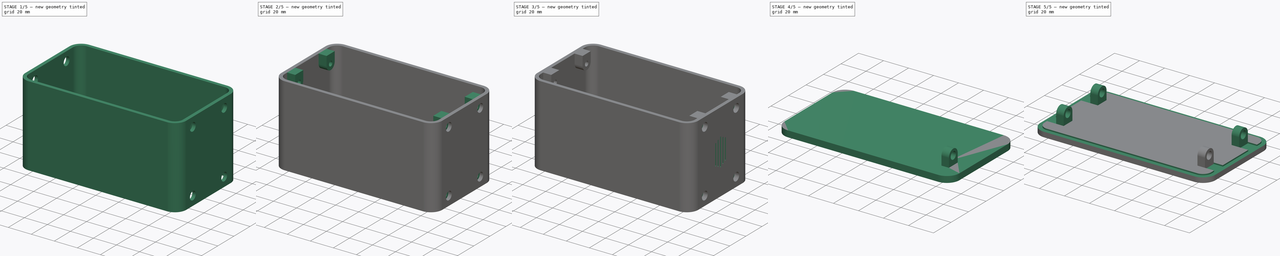
[diagram: build sequence overview — one tinted view per stage of 5, left to right]
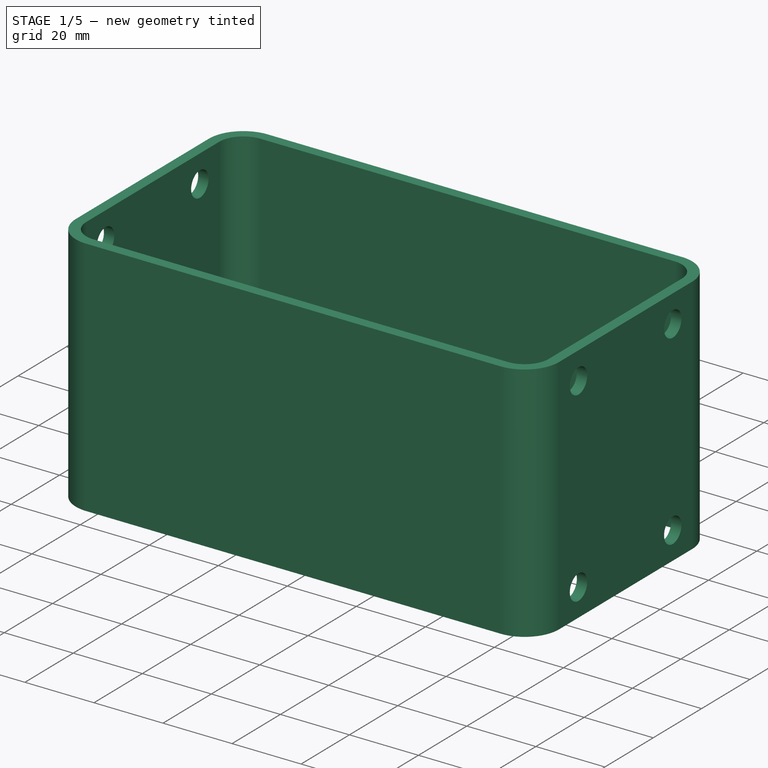
[diagram: stage 1 of 5 — iso view after this stage's code; geometry added in this stage tinted green]
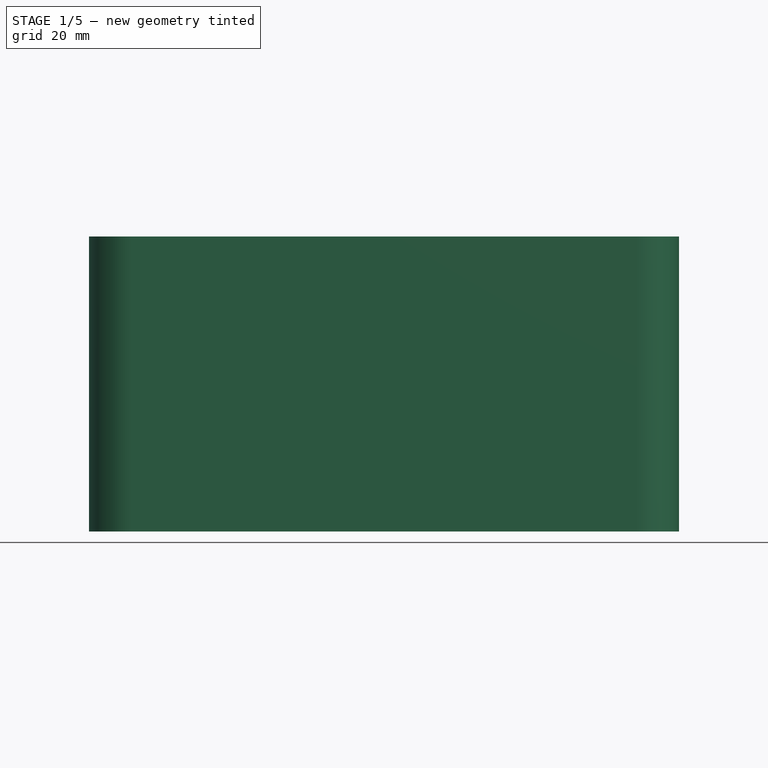
[diagram: stage 1 of 5 — front view after this stage's code; geometry added in this stage tinted green]
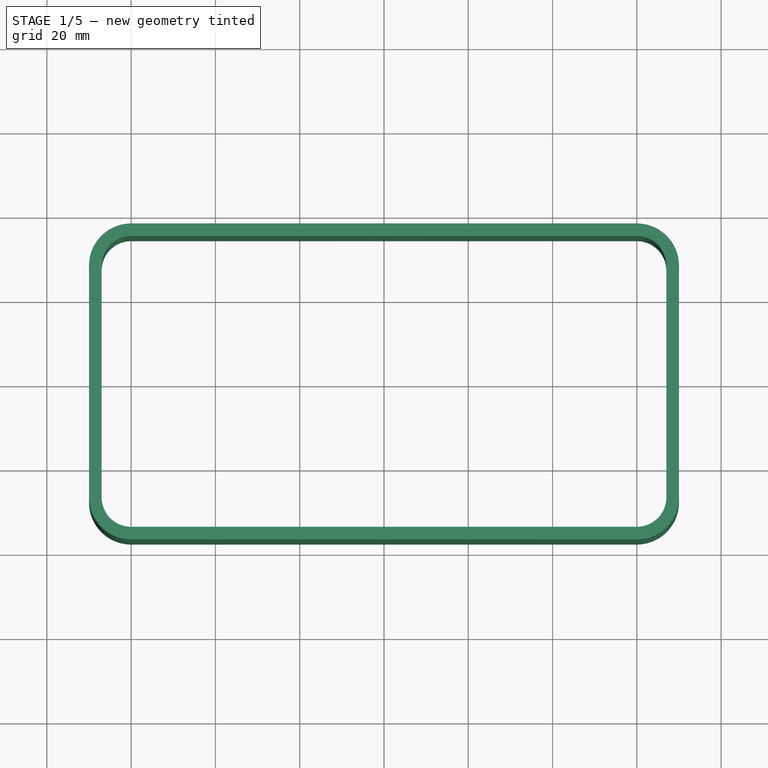
[diagram: stage 1 of 5 — top view after this stage's code; geometry added in this stage tinted green]
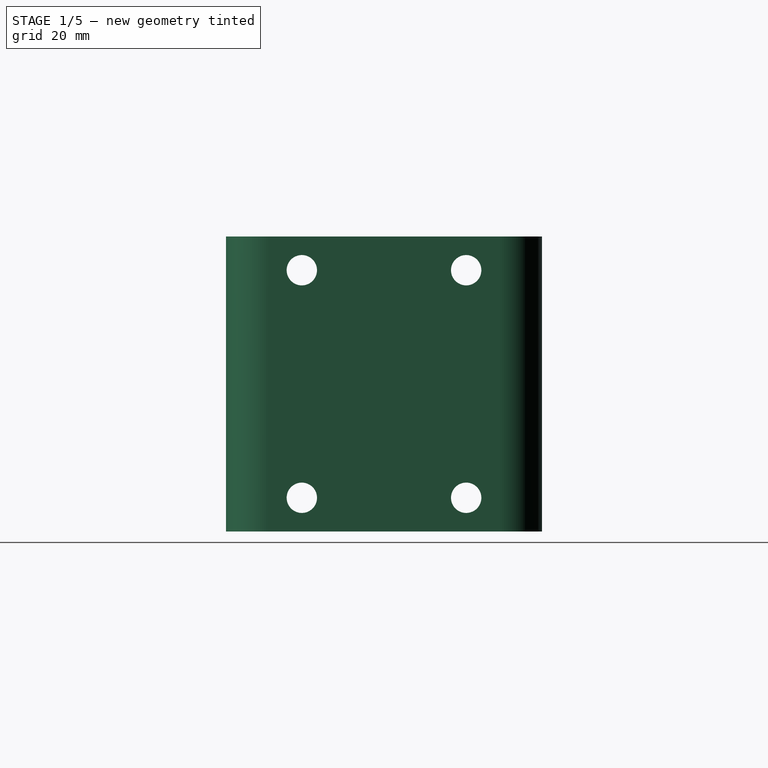
[diagram: stage 1 of 5 — right view after this stage's code; geometry added in this stage tinted green]
FCSTD DOCUMENT  (FreeCAD 1.0R39109 (Git))
Label: Base_cover_flat
License: All rights reserved
LicenseURL: https://en.wikipedia.org/wiki/All_rights_reserved
objects: Sketcher::SketchObject×10, PartDesign::Pocket×7, PartDesign::Mirrored×5, PartDesign::Pad×4, PartDesign::SubShapeBinder×2, PartDesign::Body×2, PartDesign::Plane×1, PartDesign::MultiTransform×1, Spreadsheet::Sheet×1
note: 70 computed .brp shape members not serialized (recipe doc carries the construction recipe); baked Part::Feature solids carry a one-line shape summary decoded from their .brp

FEATURE [PartDesign::SubShapeBinder] Binder001
  BindCopyOnChange = 0
  BindMode = 0
  ClaimChildren = false
  Context = -> Body001 [Binder001.]
  Fuse = false
  MakeFace = true
  OffsetFill = false
  OffsetIntersection = false
  OffsetJoinType = 0
  OffsetOpenResult = false
  PartialLoad = false
  Refine = true
  Relative = true
  _Version = 2
FEATURE [Sketcher::SketchObject] Sketch002
  ArcFitTolerance = 0
  AttachmentSupport = -> [XY_Plane001]
  FullyConstrained = true
  MakeInternals = false
  MapMode = 5
  expr: Constraints[10] = Spreadsheet.wall_thikness
  expr: Constraints[11] = Spreadsheet.wall_thikness
  expr: Constraints[12] = Spreadsheet.wall_thikness
  expr: Constraints[13] = Spreadsheet.wall_thikness
  expr: Constraints[30] = Spreadsheet.external_radius
  expr: Constraints[33] = Spreadsheet.external_radius
  expr: Constraints[4] = Spreadsheet.width
  expr: Constraints[5] = Spreadsheet.height
  sketch-geometry (32):
    g0: LineSegment StartX=-70 StartY=27.5 StartZ=0 EndX=-70 EndY=-27.5 EndZ=0
    g1: LineSegment StartX=-60 StartY=-37.5 StartZ=0 EndX=60 EndY=-37.5 EndZ=0
    g2: LineSegment StartX=70 StartY=-27.5 StartZ=0 EndX=70 EndY=27.5 EndZ=0
    g3: LineSegment StartX=60 StartY=37.5 StartZ=0 EndX=-60 EndY=37.5 EndZ=0
    g4: LineSegment StartX=-67 StartY=27.5 StartZ=0 EndX=-67 EndY=-27.5 EndZ=0
    g5: LineSegment StartX=-60 StartY=-34.5 StartZ=0 EndX=60 EndY=-34.5 EndZ=0
    g6: LineSegment StartX=67 StartY=-27.5 StartZ=0 EndX=67 EndY=27.5 EndZ=0
    g7: LineSegment StartX=60 StartY=34.5 StartZ=0 EndX=-60 EndY=34.5 EndZ=0
    g8: ArcOfCircle CenterX=-60 CenterY=-27.5 CenterZ=0 NormalX=0 NormalY=0 NormalZ=1 AngleXU=0 Radius=10 StartAngle=3.14159 EndAngle=4.71239
    g9: GeomPoint [constr] X=-70 Y=-37.5 Z=0
    g10: ArcOfCircle CenterX=-60 CenterY=27.5 CenterZ=0 NormalX=0 NormalY=0 NormalZ=1 AngleXU=0 Radius=10 StartAngle=1.5708 EndAngle=3.14159
    g11: GeomPoint [constr] X=-70 Y=37.5 Z=0
    g12: ArcOfCircle CenterX=60 CenterY=27.5 CenterZ=0 NormalX=0 NormalY=0 NormalZ=1 AngleXU=0 Radius=10 StartAngle=0 EndAngle=1.5708
    g13: GeomPoint [constr] X=70 Y=37.5 Z=0
    g14: ArcOfCircle CenterX=60 CenterY=-27.5 CenterZ=0 NormalX=0 NormalY=0 NormalZ=1 AngleXU=0 Radius=10 StartAngle=4.71239 EndAngle=6.28319
    g15: GeomPoint [constr] X=70 Y=-37.5 Z=0
    g16: GeomPoint [constr] X=-67 Y=-34.5 Z=0
    g17: ArcOfCircle CenterX=-60 CenterY=27.5 CenterZ=0 NormalX=0 NormalY=0 NormalZ=1 AngleXU=0 Radius=7 StartAngle=1.5708 EndAngle=3.14159
    g18: GeomPoint [constr] X=-67 Y=34.5 Z=0
    g19: GeomPoint [constr] X=67 Y=34.5 Z=0
    g20: GeomPoint [constr] X=67 Y=-34.5 Z=0
    g21: ArcOfCircle CenterX=60 CenterY=27.5 CenterZ=0 NormalX=0 NormalY=0 NormalZ=1 AngleXU=0 Radius=7 StartAngle=1e-16 EndAngle=1.5708
    g22: LineSegment [constr] StartX=60 StartY=37.5 StartZ=0 EndX=60 EndY=34.5 EndZ=0
    g23: LineSegment [constr] StartX=70 StartY=27.5 StartZ=0 EndX=67 EndY=27.5 EndZ=0
    g24: LineSegment [constr] StartX=70 StartY=-27.5 StartZ=0 EndX=67 EndY=-27.5 EndZ=0
    g25: LineSegment [constr] StartX=60 StartY=-37.5 StartZ=0 EndX=60 EndY=-34.5 EndZ=0
    g26: ArcOfCircle CenterX=60 CenterY=-27.5 CenterZ=0 NormalX=0 NormalY=0 NormalZ=1 AngleXU=0 Radius=7 StartAngle=4.71239 EndAngle=6.28319
    g27: LineSegment [constr] StartX=-67 StartY=-27.5 StartZ=0 EndX=-70 EndY=-27.5 EndZ=0
    g28: ArcOfCircle CenterX=-60 CenterY=-27.5 CenterZ=0 NormalX=0 NormalY=0 NormalZ=1 AngleXU=0 Radius=7 StartAngle=3.14159 EndAngle=4.71239
    g29: LineSegment [constr] StartX=-60 StartY=-37.5 StartZ=0 EndX=-60 EndY=-34.5 EndZ=0
    g30: LineSegment [constr] StartX=-70 StartY=27.5 StartZ=0 EndX=-67 EndY=27.5 EndZ=0
    g31: LineSegment [constr] StartX=-60 StartY=37.5 StartZ=0 EndX=-60 EndY=34.5 EndZ=0
  constraints (73):
    c: Vertical(g2)
    c: Horizontal(g1)
    c: Symmetric(g11,g13,g-2)
    c: Symmetric(g9,g11,g-1)
    c: DistanceX(g11,g13) = 140
    c: DistanceY(g9,g11) = 75
    c: Vertical(g4)
    c: Vertical(g6)
    c: Horizontal(g5)
    c: Horizontal(g7)
    c: Distance(g11,g4) = 3
    c: Distance(g15,g6) = 3
    c: Distance(g13,g7) = 3
    c: Distance(g9,g5) = 3
    c: PointOnObject(g9,g0)
    c: PointOnObject(g9,g1)
    c: Tangent(g0,g8) = -1.5708
    c: Tangent(g1,g8) = -1.5708
    c: PointOnObject(g11,g0)
    c: PointOnObject(g11,g3)
    c: Tangent(g0,g10) = -1.5708
    c: Tangent(g3,g10) = -1.5708
    c: PointOnObject(g13,g2)
    c: PointOnObject(g13,g3)
    c: Tangent(g2,g12) = -1.5708
    c: Tangent(g3,g12) = -1.5708
    c: PointOnObject(g15,g1)
    c: PointOnObject(g15,g2)
    c: Tangent(g1,g14) = -1.5708
    c: Tangent(g2,g14) = -1.5708
    c: Radius(g8) = 10
    c: Equal(g10,g12)
    c: Equal(g12,g14)
    c: Radius(g10) = 10
    c: PointOnObject(g16,g4)
    c: PointOnObject(g16,g5)
    c: PointOnObject(g18,g4)
    c: PointOnObject(g18,g7)
    c: Tangent(g4,g17) = -1.5708
    c: Tangent(g7,g17) = -1.5708
    c: PointOnObject(g19,g6)
    c: PointOnObject(g19,g7)
    c: PointOnObject(g20,g5)
    c: PointOnObject(g20,g6)
    c: Coincident(g21,g12)
    c: Coincident(g21,g7)
    c: Coincident(g21,g6)
    c: Coincident(g22,g3)
    c: Coincident(g22,g7)
    c: Coincident(g23,g2)
    c: Coincident(g23,g6)
    c: Horizontal(g23)
    c: Coincident(g24,g2)
    c: Coincident(g24,g6)
    c: Coincident(g25,g1)
    c: Coincident(g25,g5)
    c: Horizontal(g24)
    c: Coincident(g26,g14)
    c: Coincident(g26,g5)
    c: Coincident(g26,g6)
    c: Coincident(g27,g4)
    c: Coincident(g27,g0)
    c: Horizontal(g27)
    c: Coincident(g5,g28)
    c: Coincident(g4,g28)
    c: Coincident(g29,g1)
    c: Coincident(g29,g5)
    c: Coincident(g28,g8)
    c: Coincident(g30,g0)
    c: Coincident(g30,g4)
    c: Coincident(g31,g3)
    c: Coincident(g31,g7)
    c: Vertical(g31)
FEATURE [PartDesign::Pad] Pad002
  Direction = (0,0,1)
  Length = 70
  Length2 = 10
  Profile = -> Sketch002
  ReferenceAxis = -> Sketch002 [N_Axis]
  Refine = true
  Suppressed = false
  Type = 0
FEATURE [Sketcher::SketchObject] Sketch003
  ArcFitTolerance = 0
  AttachmentSupport = -> [Pad002]
  ExternalGeometry = -> [Pad002]
  FullyConstrained = true
  MakeInternals = false
  MapMode = 5
  Placement = pos=(-70,0,0) rot=(0.57735,-0.57735,-0.57735;2.0944rad)
  sketch-geometry (4):
    g0: Circle CenterX=-19.5 CenterY=8 CenterZ=0 NormalX=0 NormalY=0 NormalZ=1 AngleXU=0 Radius=3.6
    g1: Circle CenterX=-19.5 CenterY=62 CenterZ=0 NormalX=0 NormalY=0 NormalZ=1 AngleXU=0 Radius=3.6
    g2: Circle CenterX=19.5 CenterY=62 CenterZ=0 NormalX=0 NormalY=0 NormalZ=1 AngleXU=0 Radius=3.6
    g3: Circle CenterX=19.5 CenterY=8 CenterZ=0 NormalX=0 NormalY=0 NormalZ=1 AngleXU=0 Radius=3.6
  constraints (10):
    c: Equal(g0,g1)
    c: Equal(g1,g2)
    c: Equal(g2,g3)
    c: Diameter(g0) = 7.2
    c: Symmetric(g1,g2,g-2)
    c: Symmetric(g0,g3,g-2)
    c: DistanceX(g-4,g1) = 8
    c: DistanceY(g1,g-4) = 8
    c: Distance(g0,g-3) = 8
    c: DistanceY(g-6,g0) = 8
FEATURE [PartDesign::Pocket] Pocket001
  BaseFeature = -> Pad002
  Direction = (1,0,0)
  Length = 3
  Length2 = 5
  Profile = -> Sketch003 [Edge2,Edge1,Edge4,Edge3]
  ReferenceAxis = -> Sketch003 [N_Axis]
  Refine = true
  Suppressed = false
  Type = 0
  expr: Length = Spreadsheet.wall_thikness
FEATURE [PartDesign::Mirrored] Mirrored002
  BaseFeature = -> Pocket001
  MirrorPlane = -> YZ_Plane001
  Originals = -> [Pocket001]
  Refine = true
  Suppressed = false
  TransformMode = 0
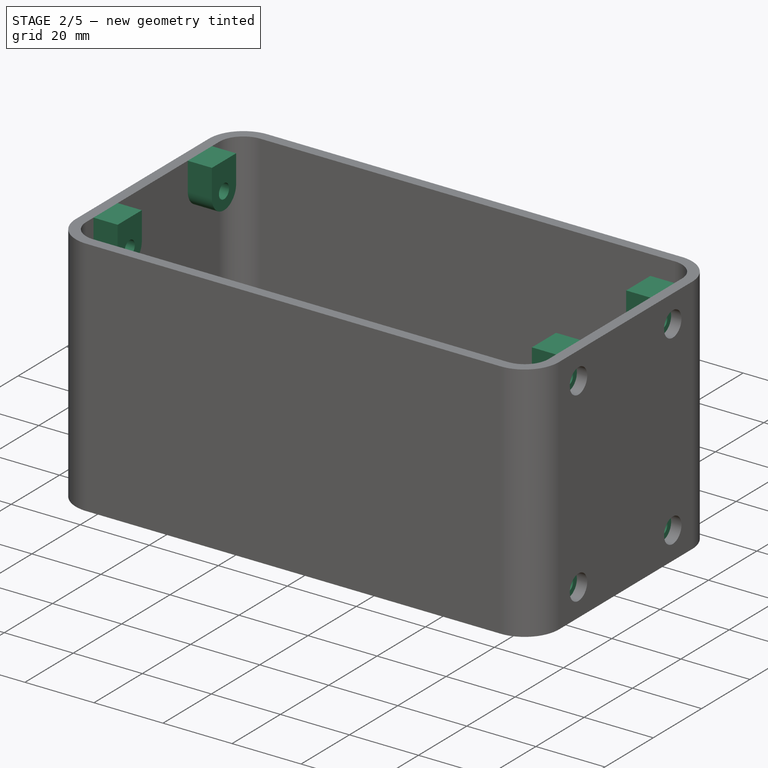
[diagram: stage 2 of 5 — iso view after this stage's code; geometry added in this stage tinted green]
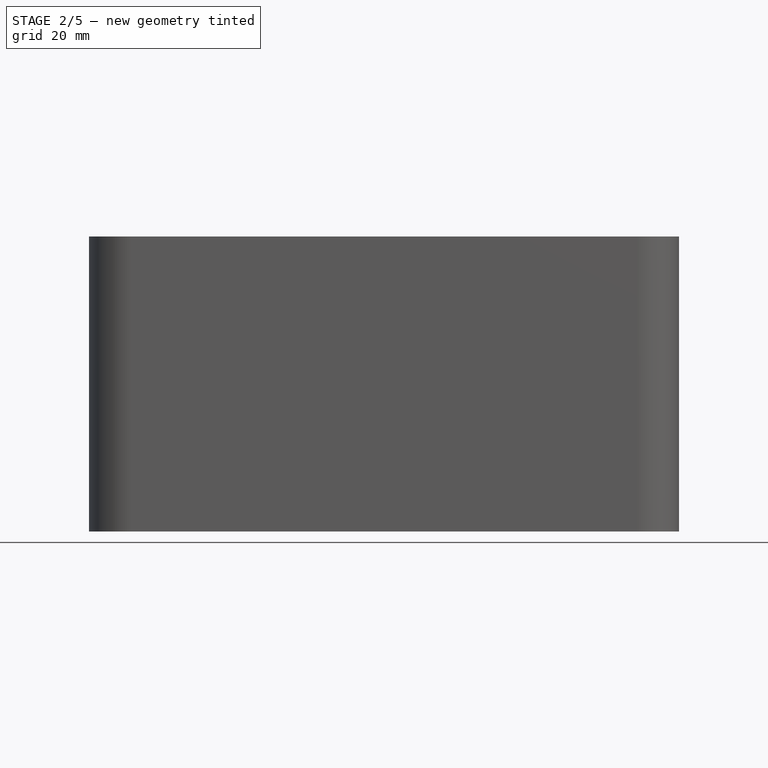
[diagram: stage 2 of 5 — front view after this stage's code; geometry added in this stage tinted green]
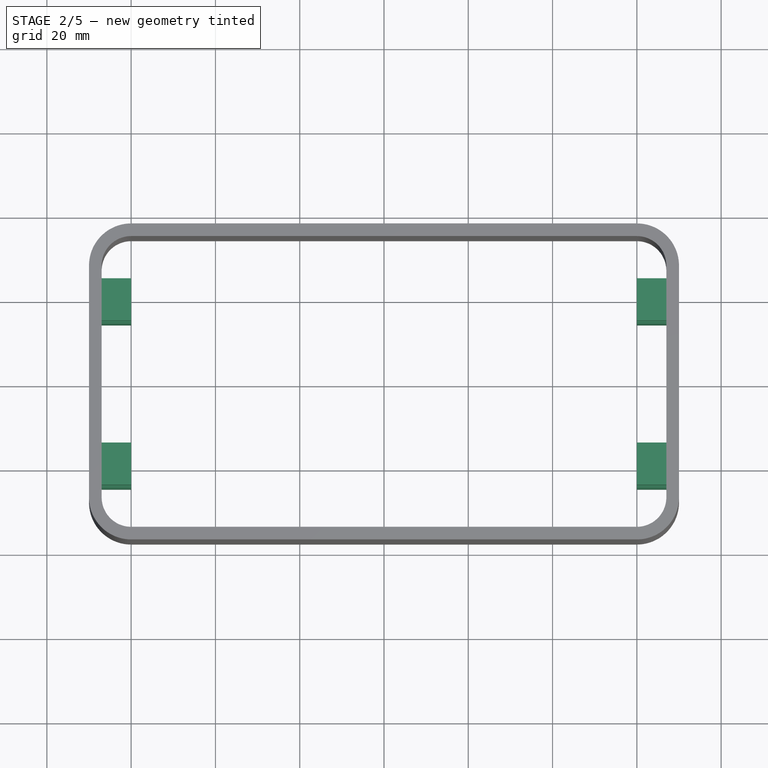
[diagram: stage 2 of 5 — top view after this stage's code; geometry added in this stage tinted green]
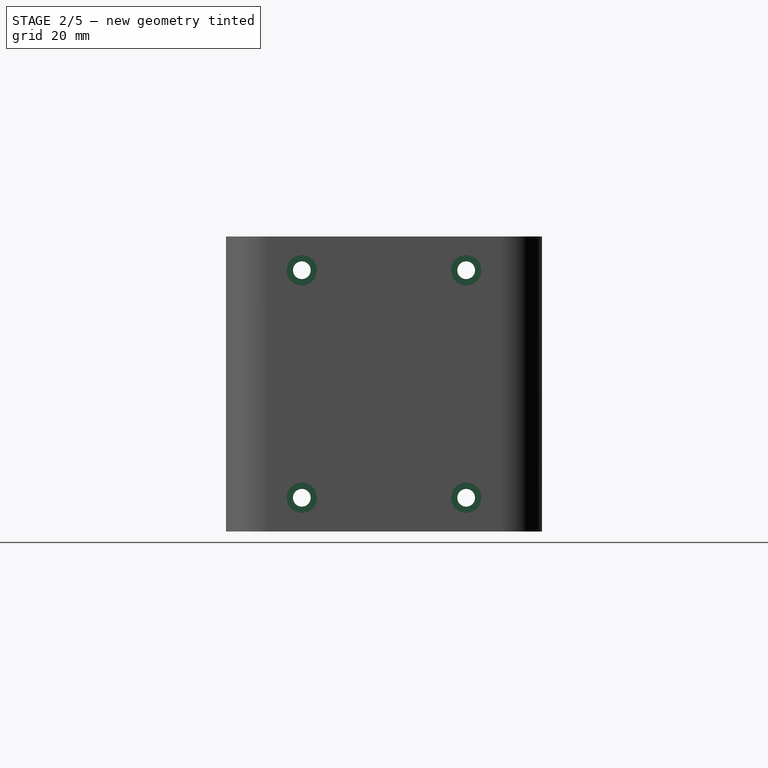
[diagram: stage 2 of 5 — right view after this stage's code; geometry added in this stage tinted green]
FEATURE [Sketcher::SketchObject] Sketch004
  ArcFitTolerance = 1e-06
  AttachmentSupport = -> [Mirrored002]
  ExternalGeometry = -> [Mirrored002]
  FullyConstrained = true
  MakeInternals = false
  MapMode = 5
  Placement = pos=(-67,0,0) rot=(0.57735,0.57735,0.57735;2.0944rad)
  sketch-geometry (32):
    g0: LineSegment [constr] StartX=-19.5 StartY=62 StartZ=0 EndX=-19.5 EndY=70 EndZ=0
    g1: LineSegment [constr] StartX=19.5 StartY=62 StartZ=0 EndX=19.5 EndY=70 EndZ=0
    g2: LineSegment [constr] StartX=19.5 StartY=8 StartZ=0 EndX=19.5 EndY=0 EndZ=0
    g3: LineSegment [constr] StartX=-19.5 StartY=8 StartZ=0 EndX=-19.5 EndY=0 EndZ=0
    g4: LineSegment StartX=-24.5 StartY=0 StartZ=0 EndX=-24.5 EndY=8 EndZ=0
    g5: LineSegment StartX=-14.5 StartY=0 StartZ=0 EndX=-14.5 EndY=8 EndZ=0
    g6: ArcOfCircle CenterX=-19.5 CenterY=8 CenterZ=0 NormalX=0 NormalY=0 NormalZ=1 AngleXU=0 Radius=5 StartAngle=1.53366e-11 EndAngle=3.14159
    g7: LineSegment StartX=-24.5 StartY=0 StartZ=0 EndX=-14.5 EndY=0 EndZ=0
    g8: LineSegment StartX=-24.5 StartY=70 StartZ=0 EndX=-24.5 EndY=62 EndZ=0
    g9: LineSegment StartX=-14.5 StartY=70 StartZ=0 EndX=-14.5 EndY=62 EndZ=0
    g10: ArcOfCircle CenterX=-19.5 CenterY=62 CenterZ=0 NormalX=0 NormalY=0 NormalZ=1 AngleXU=0 Radius=5 StartAngle=3.14159 EndAngle=6.28319
    g11: LineSegment StartX=-24.5 StartY=70 StartZ=0 EndX=-14.5 EndY=70 EndZ=0
    g12: LineSegment StartX=14.5 StartY=70 StartZ=0 EndX=14.5 EndY=62 EndZ=0
    g13: LineSegment StartX=24.5 StartY=70 StartZ=0 EndX=24.5 EndY=62 EndZ=0
    g14: ArcOfCircle CenterX=19.5 CenterY=62 CenterZ=0 NormalX=0 NormalY=0 NormalZ=1 AngleXU=0 Radius=5 StartAngle=3.14159 EndAngle=6.28319
    g15: LineSegment StartX=14.5 StartY=70 StartZ=0 EndX=24.5 EndY=70 EndZ=0
    g16: LineSegment StartX=14.5 StartY=0 StartZ=0 EndX=14.5 EndY=8 EndZ=0
    g17: LineSegment StartX=24.5 StartY=8 StartZ=0 EndX=24.5 EndY=0 EndZ=0
    g18: ArcOfCircle CenterX=19.5 CenterY=8 CenterZ=0 NormalX=0 NormalY=0 NormalZ=1 AngleXU=0 Radius=5 StartAngle=1.53365e-11 EndAngle=3.14159
    g19: LineSegment StartX=14.5 StartY=0 StartZ=0 EndX=24.5 EndY=0 EndZ=0
    g20: Circle CenterX=-19.5 CenterY=62 CenterZ=0 NormalX=0 NormalY=0 NormalZ=1 AngleXU=0 Radius=3.6
    g21: Circle CenterX=19.5 CenterY=62 CenterZ=0 NormalX=0 NormalY=0 NormalZ=1 AngleXU=0 Radius=3.6
    g22: Circle CenterX=19.5 CenterY=8 CenterZ=0 NormalX=0 NormalY=0 NormalZ=1 AngleXU=0 Radius=3.6
    g23: Circle CenterX=-19.5 CenterY=8 CenterZ=0 NormalX=0 NormalY=0 NormalZ=1 AngleXU=0 Radius=3.6
    g24: Circle CenterX=-19.5 CenterY=8 CenterZ=0 NormalX=0 NormalY=0 NormalZ=1 AngleXU=0 Radius=2.1
    g25: Circle CenterX=19.5 CenterY=8 CenterZ=0 NormalX=0 NormalY=0 NormalZ=1 AngleXU=0 Radius=2.1
    g26: Circle CenterX=19.5 CenterY=62 CenterZ=0 NormalX=0 NormalY=0 NormalZ=1 AngleXU=0 Radius=2.1
    g27: Circle CenterX=-19.5 CenterY=62 CenterZ=0 NormalX=0 NormalY=0 NormalZ=1 AngleXU=0 Radius=2.1
    g28: LineSegment StartX=-26.5 StartY=51 StartZ=0 EndX=-26.5 EndY=20 EndZ=0
    g29: LineSegment StartX=-26.5 StartY=20 StartZ=0 EndX=-5 EndY=20 EndZ=0
    g30: LineSegment StartX=-5 StartY=20 StartZ=0 EndX=-5 EndY=51 EndZ=0
    g31: LineSegment StartX=-5 StartY=51 StartZ=0 EndX=-26.5 EndY=51 EndZ=0
  constraints (88):
    c: Coincident(g0,g-8)
    c: PointOnObject(g0,g-4)
    c: Vertical(g0)
    c: Coincident(g1,g-9)
    c: PointOnObject(g1,g-4)
    c: Vertical(g1)
    c: Coincident(g2,g-6)
    c: PointOnObject(g2,g-1)
    c: Vertical(g2)
    c: Coincident(g3,g-7)
    c: PointOnObject(g3,g-1)
    c: Vertical(g3)
    c: PointOnObject(g4,g-1)
    c: Vertical(g4)
    c: PointOnObject(g5,g-1)
    c: Vertical(g5)
    c: Coincident(g6,g3)
    c: Coincident(g6,g4)
    c: Coincident(g6,g5)
    c: Equal(g4,g5)
    c: Equal(g5,g3)
    c: Radius(g6) = 5
    c: Coincident(g7,g4)
    c: Coincident(g7,g5)
    c: PointOnObject(g8,g-4)
    c: Vertical(g8)
    c: PointOnObject(g9,g-4)
    c: Vertical(g9)
    c: Coincident(g10,g0)
    c: Coincident(g10,g8)
    c: Coincident(g10,g9)
    c: Equal(g8,g0)
    c: Equal(g0,g9)
    c: Radius(g10) = 5
    c: Coincident(g11,g8)
    c: Coincident(g11,g9)
    c: PointOnObject(g12,g-4)
    c: Vertical(g12)
    c: PointOnObject(g13,g-4)
    c: Vertical(g13)
    c: Coincident(g14,g1)
    c: Coincident(g14,g12)
    c: Coincident(g14,g13)
    c: Equal(g12,g1)
    c: Equal(g1,g13)
    c: Radius(g14) = 5
    c: Coincident(g15,g12)
    c: Coincident(g15,g13)
    c: PointOnObject(g16,g-1)
    c: Vertical(g16)
    c: PointOnObject(g17,g-1)
    c: Vertical(g17)
    c: Equal(g16,g2)
    c: Equal(g2,g17)
    c: Coincident(g18,g2)
    c: Coincident(g18,g16)
    c: Coincident(g18,g17)
    c: Radius(g18) = 5
    c: Coincident(g19,g16)
    c: Coincident(g19,g17)
    c: Diameter(g20) = 7.2
    c: Coincident(g20,g0)
    c: Diameter(g21) = 7.2
    c: Coincident(g21,g1)
    c: Coincident(g22,g2)
    c: Diameter(g22) = 7.2
    c: Coincident(g23,g3)
    c: Diameter(g23) = 7.2
    c: Coincident(g24,g3)
    c: Coincident(g25,g2)
    c: Coincident(g26,g1)
    c: Coincident(g27,g0)
    c: Diameter(g24) = 4.2
    c: Equal(g24,g25)
    c: Equal(g25,g26)
    c: Equal(g26,g27)
    c: Coincident(g28,g29)
    c: Coincident(g29,g30)
    c: Coincident(g30,g31)
    c: Coincident(g31,g28)
    c: Vertical(g28)
    c: Vertical(g30)
    c: Horizontal(g29)
    c: Horizontal(g31)
    c: DistanceX(g31,g31) = 21.5
    c: DistanceY(g30,g30) = 31
    c: Distance(g29,g-2) = 5
    c: Distance(g29,g-1) = 20
FEATURE [PartDesign::Pad] Pad003
  BaseFeature = -> Mirrored002
  Direction = (1,0,0)
  Length = 7
  Length2 = 10
  Profile = -> Sketch004 [Edge16,Edge13,Edge14,Edge15,Edge22,Edge4,Edge1,Edge2,Edge3,Edge21,Edge10,Edge11,Edge12,Edge9,Edge23,Edge6,Edge5,Edge8,Edge7,Edge24]
  ReferenceAxis = -> Sketch004 [N_Axis]
  Refine = true
  Suppressed = false
  Type = 0
FEATURE [PartDesign::Pocket] Pocket002
  BaseFeature = -> Pad003
  Direction = (-1,0,0)
  Length = 1
  Length2 = 5
  Profile = -> Sketch004 [Edge18,Edge17,Edge19,Edge20]
  ReferenceAxis = -> Sketch004 [N_Axis]
  Refine = true
  Reversed = true
  Suppressed = false
  Type = 0
FEATURE [PartDesign::Mirrored] Mirrored003
  BaseFeature = -> Pocket002
  MirrorPlane = -> YZ_Plane001
  Originals = -> [Pad003]
  Refine = true
  Suppressed = false
  TransformMode = 0
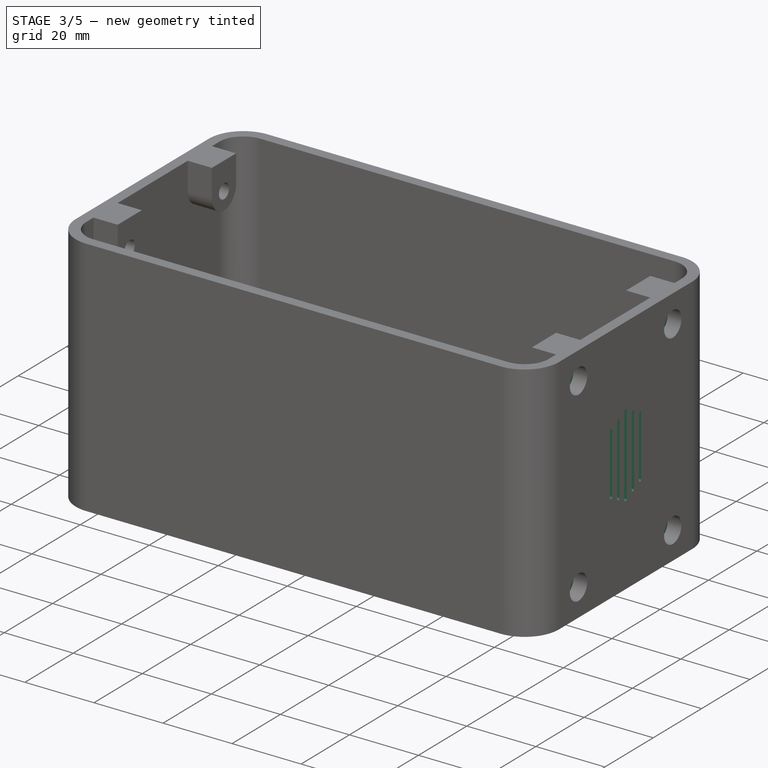
[diagram: stage 3 of 5 — iso view after this stage's code; geometry added in this stage tinted green]
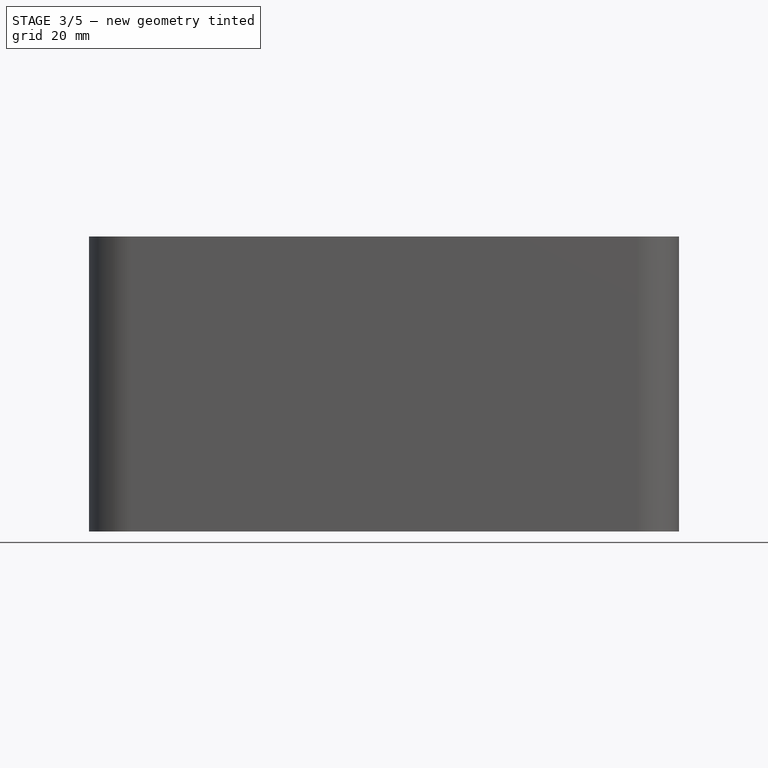
[diagram: stage 3 of 5 — front view after this stage's code; geometry added in this stage tinted green]
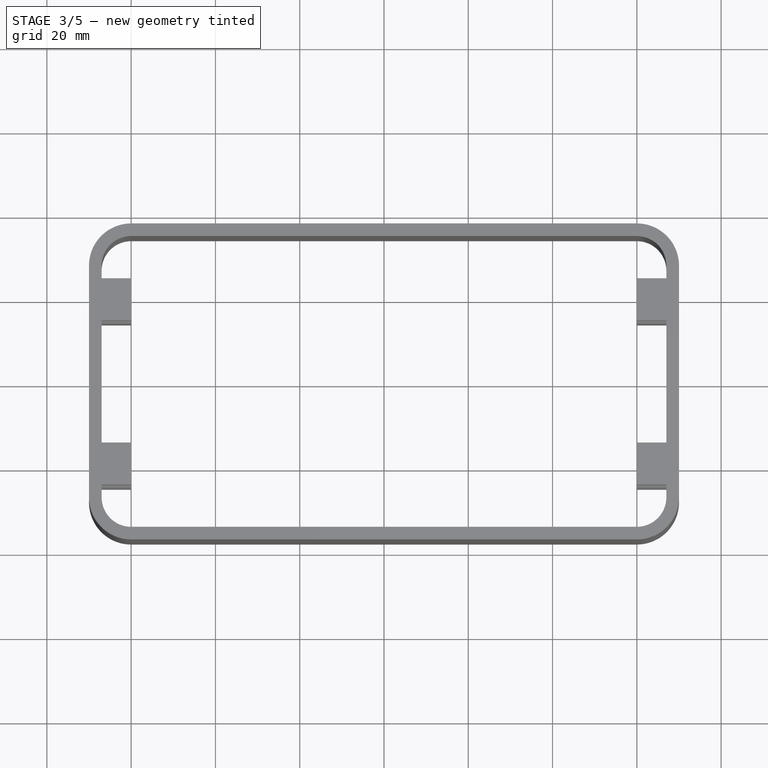
[diagram: stage 3 of 5 — top view after this stage's code; geometry added in this stage tinted green]
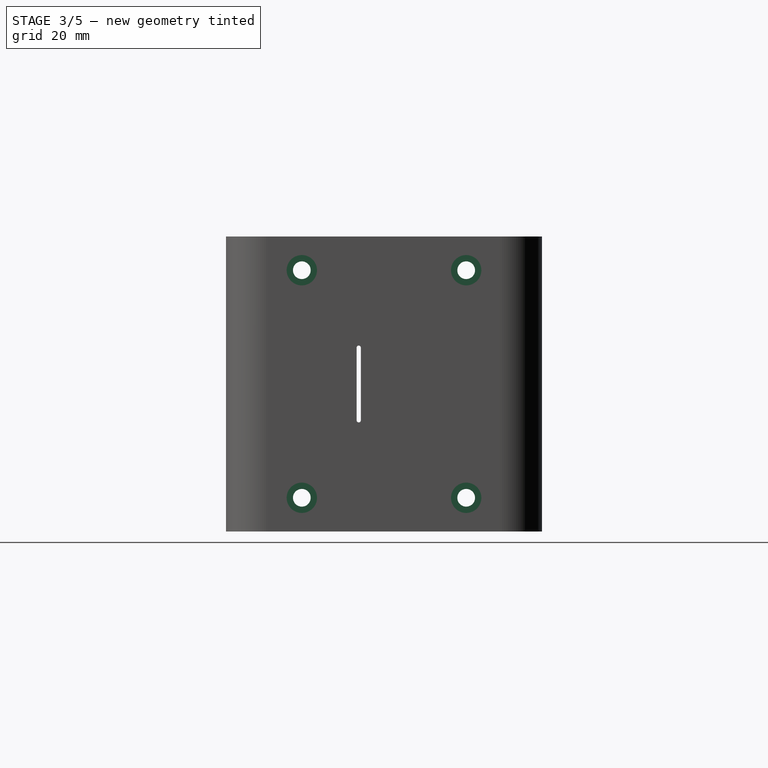
[diagram: stage 3 of 5 — right view after this stage's code; geometry added in this stage tinted green]
FEATURE [PartDesign::Mirrored] Mirrored004
  BaseFeature = -> Mirrored003
  MirrorPlane = -> YZ_Plane001
  Originals = -> [Pocket002]
  Refine = true
  Suppressed = false
  TransformMode = 0
FEATURE [PartDesign::Pocket] Pocket003
  BaseFeature = -> Mirrored004
  Direction = (-1,0,0)
  Length = 5
  Length2 = 5
  Profile = -> Sketch004 [Edge28,Edge25,Edge26,Edge27]
  ReferenceAxis = -> Sketch004 [N_Axis]
  Refine = true
  Suppressed = false
  Type = 0
FEATURE [Sketcher::SketchObject] Sketch005
  ArcFitTolerance = 1e-06
  AttachmentSupport = -> [XY_Plane001]
  FullyConstrained = false
  MakeInternals = false
  MapMode = 5
  sketch-geometry (10):
    g0: Circle CenterX=-34.7329 CenterY=14.272 CenterZ=0 NormalX=0 NormalY=0 NormalZ=1 AngleXU=0 Radius=17
    g1: Circle CenterX=0.267079 CenterY=14.272 CenterZ=0 NormalX=0 NormalY=0 NormalZ=1 AngleXU=0 Radius=17
    g2: Circle CenterX=35.2671 CenterY=14.272 CenterZ=0 NormalX=0 NormalY=0 NormalZ=1 AngleXU=0 Radius=17
    g3: Circle CenterX=-17.2329 CenterY=-15.728 CenterZ=0 NormalX=0 NormalY=0 NormalZ=1 AngleXU=0 Radius=17
    g4: Circle CenterX=17.7671 CenterY=-15.728 CenterZ=0 NormalX=0 NormalY=0 NormalZ=1 AngleXU=0 Radius=17
    g5: GeomPoint [constr] X=0.267079 Y=14.272 Z=0
    g6: LineSegment [constr] StartX=-34.7329 StartY=14.272 StartZ=0 EndX=0.267079 EndY=14.272 EndZ=0
    g7: LineSegment [constr] StartX=0.267079 StartY=14.272 StartZ=0 EndX=35.2671 EndY=14.272 EndZ=0
    g8: LineSegment [constr] StartX=-17.2329 StartY=-15.728 StartZ=0 EndX=17.7671 EndY=-15.728 EndZ=0
    g9: LineSegment [constr] StartX=0.267079 StartY=14.272 StartZ=0 EndX=0.267079 EndY=-15.728 EndZ=0
  constraints (22):
    c: Diameter(g0) = 34
    c: Coincident(g6,g0)
    c: Coincident(g7,g2)
    c: Symmetric(g6,g7,g5)
    c: Coincident(g1,g5)
    c: Equal(g0,g1)
    c: Equal(g1,g2)
    c: Equal(g2,g4)
    c: Equal(g4,g3)
    c: Coincident(g6,g7)
    c: Horizontal(g6)
    c: Horizontal(g7)
    c: Equal(g6,g7)
    c: Coincident(g8,g3)
    c: Coincident(g8,g4)
    c: Horizontal(g8)
    c: DistanceX(g6,g6) = 35
    c: Equal(g8,g6)
    c: Coincident(g9,g1)
    c: Symmetric(g8,g8,g9)
    c: Vertical(g9)
    c: DistanceY(g9,g9) = 30
FEATURE [Sketcher::SketchObject] Sketch006
  ArcFitTolerance = 1e-06
  AttachmentSupport = -> [Pocket003]
  ExternalGeometry = -> [Pocket003]
  FullyConstrained = true
  MakeInternals = false
  MapMode = 5
  Placement = pos=(67,0,0) rot=(0.57735,-0.57735,-0.57735;2.0944rad)
  sketch-geometry (41):
    g0: LineSegment [constr] StartX=1.48e-14 StartY=70 StartZ=0 EndX=0 EndY=0 EndZ=0
    g1: LineSegment [constr] StartX=27.5 StartY=35 StartZ=0 EndX=-27.5 EndY=35 EndZ=0
    g2: ArcOfCircle [constr] CenterX=8.4e-15 CenterY=40 CenterZ=0 NormalX=0 NormalY=0 NormalZ=1 AngleXU=0 Radius=10.5 StartAngle=2e-16 EndAngle=3.14159
    g3: ArcOfCircle [constr] CenterX=8.4e-15 CenterY=30 CenterZ=0 NormalX=0 NormalY=0 NormalZ=1 AngleXU=0 Radius=10.5 StartAngle=3.1416 EndAngle=6.28318
    g4: LineSegment [constr] StartX=10.5 StartY=40 StartZ=0 EndX=10.5 EndY=30 EndZ=0
    g5: LineSegment [constr] StartX=-10.5 StartY=40 StartZ=0 EndX=-10.5 EndY=30 EndZ=0
    g6: LineSegment StartX=-0.5 StartY=46.5 StartZ=0 EndX=-0.5 EndY=23.5 EndZ=0
    g7: LineSegment StartX=0.5 StartY=46.5 StartZ=0 EndX=0.5 EndY=23.5 EndZ=0
    g8: ArcOfCircle CenterX=9.8e-15 CenterY=46.5 CenterZ=0 NormalX=0 NormalY=0 NormalZ=1 AngleXU=0 Radius=0.5 StartAngle=5.9e-15 EndAngle=3.14159
    g9: ArcOfCircle CenterX=5e-15 CenterY=23.5 CenterZ=0 NormalX=0 NormalY=0 NormalZ=1 AngleXU=0 Radius=0.5 StartAngle=3.14159 EndAngle=6.28319
    g10: LineSegment StartX=-2.5 StartY=45.0623 StartZ=0 EndX=-2.5 EndY=24.9377 EndZ=0
    g11: LineSegment StartX=-3.5 StartY=45.0623 StartZ=0 EndX=-3.5 EndY=24.9377 EndZ=0
    g12: ArcOfCircle CenterX=-3 CenterY=45.0623 CenterZ=0 NormalX=0 NormalY=0 NormalZ=1 AngleXU=0 Radius=0.5 StartAngle=-1.8e-15 EndAngle=3.14159
    g13: ArcOfCircle CenterX=-3 CenterY=24.9377 CenterZ=0 NormalX=0 NormalY=0 NormalZ=1 AngleXU=0 Radius=0.5 StartAngle=3.14159 EndAngle=6.28319
    g14: LineSegment [constr] StartX=-10.5 StartY=50.5 StartZ=0 EndX=10.5 EndY=50.5 EndZ=0
    g15: LineSegment [constr] StartX=-3 StartY=45.0623 StartZ=0 EndX=-3 EndY=50.0623 EndZ=0
    g16: LineSegment [constr] StartX=-3 StartY=50.0623 StartZ=0 EndX=-3 EndY=50.5 EndZ=0
    g17: LineSegment StartX=-6.5 StartY=43.6168 StartZ=0 EndX=-6.5 EndY=26.3832 EndZ=0
    g18: LineSegment StartX=-5.5 StartY=43.6168 StartZ=0 EndX=-5.5 EndY=26.3832 EndZ=0
    g19: ArcOfCircle CenterX=-6 CenterY=43.6168 CenterZ=0 NormalX=0 NormalY=0 NormalZ=1 AngleXU=0 Radius=0.5 StartAngle=-3.6e-15 EndAngle=3.14159
    g20: ArcOfCircle CenterX=-6 CenterY=26.3832 CenterZ=0 NormalX=0 NormalY=0 NormalZ=1 AngleXU=0 Radius=0.5 StartAngle=3.14159 EndAngle=6.28319
    g21: LineSegment [constr] StartX=-3 StartY=45.0623 StartZ=0 EndX=-3 EndY=24.9377 EndZ=0
    g22: LineSegment [constr] StartX=-6 StartY=43.6168 StartZ=0 EndX=-6 EndY=26.3832 EndZ=0
    g23: LineSegment [constr] StartX=-6 StartY=43.6168 StartZ=0 EndX=-6 EndY=48.6168 EndZ=0
    g24: LineSegment [constr] StartX=-6 StartY=48.6168 StartZ=0 EndX=-6 EndY=50.5 EndZ=0
    g25: LineSegment [constr] StartX=10.5 StartY=40 StartZ=0 EndX=-10.5 EndY=40 EndZ=0
    g26: LineSegment [constr] StartX=-10.5 StartY=30 StartZ=0 EndX=10.5 EndY=30 EndZ=0
    g27: LineSegment [constr] StartX=6 StartY=43.6168 StartZ=0 EndX=6 EndY=26.3832 EndZ=0
    g28: LineSegment StartX=5.5 StartY=43.6168 StartZ=0 EndX=5.5 EndY=26.3832 EndZ=0
    g29: ArcOfCircle CenterX=6 CenterY=26.3832 CenterZ=0 NormalX=0 NormalY=0 NormalZ=1 AngleXU=0 Radius=0.5 StartAngle=3.14159 EndAngle=6.28319
    g30: ArcOfCircle CenterX=6 CenterY=43.6168 CenterZ=0 NormalX=0 NormalY=0 NormalZ=1 AngleXU=0 Radius=0.5 StartAngle=-4.4e-15 EndAngle=3.14159
    g31: LineSegment StartX=6.5 StartY=43.6168 StartZ=0 EndX=6.5 EndY=26.3832 EndZ=0
    g32: ArcOfCircle CenterX=3 CenterY=45.0623 CenterZ=0 NormalX=0 NormalY=0 NormalZ=1 AngleXU=0 Radius=0.5 StartAngle=2.6e-15 EndAngle=3.14159
    g33: LineSegment StartX=3.5 StartY=45.0623 StartZ=0 EndX=3.5 EndY=24.9377 EndZ=0
    g34: LineSegment StartX=2.5 StartY=45.0623 StartZ=0 EndX=2.5 EndY=24.9377 EndZ=0
    g35: ArcOfCircle CenterX=3 CenterY=24.9377 CenterZ=0 NormalX=0 NormalY=0 NormalZ=1 AngleXU=0 Radius=0.5 StartAngle=3.14159 EndAngle=6.28319
    g36: LineSegment [constr] StartX=3 StartY=45.0623 StartZ=0 EndX=3 EndY=24.9377 EndZ=0
    g37: LineSegment [constr] StartX=3 StartY=45.0623 StartZ=0 EndX=3 EndY=50.0623 EndZ=0
    g38: LineSegment [constr] StartX=3 StartY=50.0623 StartZ=0 EndX=3 EndY=50.5 EndZ=0
    g39: LineSegment [constr] StartX=6 StartY=43.6168 StartZ=0 EndX=6 EndY=48.6168 EndZ=0
    g40: LineSegment [constr] StartX=6 StartY=48.6168 StartZ=0 EndX=6 EndY=50.5 EndZ=0
  constraints (103):
    c: Symmetric(g-4,g-4,g0)
    c: Coincident(g0,g-1)
    c: Symmetric(g-5,g-5,g1)
    c: Symmetric(g-3,g-3,g1)
    c: PointOnObject(g2,g0)
    c: Radius(g2) = 10.5
    c: Equal(g3,g2)
    c: Coincident(g4,g3)
    c: Vertical(g4)
    c: Coincident(g5,g3)
    c: Vertical(g5)
    c: Distance(g2,g3) = 10
    c: Tangent(g5,g2) = -1.5708
    c: Tangent(g4,g2) = 1.5708
    c: Symmetric(g2,g3,g1)
    c: Symmetric(g6,g6,g1)
    c: Distance(g2,g6) = 0.5
    c: PointOnObject(g8,g0)
    c: PointOnObject(g9,g0)
    c: Distance(g8,g2) = 4
    c: Tangent(g9,g6) = -1.5708
    c: Tangent(g9,g7) = 1.5708
    c: Tangent(g8,g6) = -1.5708
    c: Tangent(g8,g7) = 1.5708
    c: Symmetric(g11,g11,g1)
    c: Symmetric(g10,g10,g1)
    c: Distance(g11,g10) = 1
    c: Tangent(g12,g11) = -1.5708
    c: Tangent(g12,g10) = 1.5708
    c: Coincident(g13,g11)
    c: Tangent(g10,g13) = 1.5708
    c: Horizontal(g14)
    c: Tangent(g14,g2)
    c: PointOnObject(g14,g5)
    c: PointOnObject(g14,g4)
    c: Coincident(g15,g12)
    c: PointOnObject(g16,g14)
    c: Coincident(g15,g16)
    c: Vertical(g15)
    c: Vertical(g16)
    c: PointOnObject(g15,g2)
    c: DistanceX(g12,g8) = 3
    c: DistanceY(g15,g15) = 5
    c: Symmetric(g17,g17,g1)
    c: Symmetric(g18,g18,g1)
    c: Equal(g17,g18)
    c: Coincident(g19,g17)
    c: Coincident(g20,g18)
    c: Distance(g18,g17) = 1
    c: Coincident(g21,g12)
    c: Coincident(g21,g13)
    c: Coincident(g22,g19)
    c: Coincident(g22,g20)
    c: Distance(g19,g21) = 3
    c: Coincident(g23,g19)
    c: PointOnObject(g24,g14)
    c: Coincident(g23,g24)
    c: Vertical(g23)
    c: Vertical(g24)
    c: PointOnObject(g23,g2)
    c: DistanceY(g23,g23) = 5
    c: Tangent(g19,g18) = 1.5708
    c: Tangent(g20,g17) = -1.5708
    c: Coincident(g25,g2)
    c: Coincident(g25,g2)
    c: Coincident(g26,g3)
    c: Coincident(g26,g3)
    c: Equal(g31,g28)
    c: Coincident(g29,g28)
    c: Distance(g28,g31) = 1
    c: Coincident(g27,g30)
    c: Coincident(g27,g29)
    c: Tangent(g30,g28) = -1.5708
    c: Tangent(g29,g31) = 1.5708
    c: Distance(g33,g34) = 1
    c: Tangent(g32,g33) = 1.5708
    c: Tangent(g32,g34) = -1.5708
    c: Coincident(g35,g33)
    c: Tangent(g34,g35) = -1.5708
    c: Coincident(g36,g32)
    c: Coincident(g36,g35)
    c: Coincident(g37,g32)
    c: PointOnObject(g37,g2)
    c: Vertical(g37)
    c: Coincident(g38,g37)
    c: PointOnObject(g38,g14)
    c: Vertical(g38)
    c: Vertical(g36)
    c: Coincident(g39,g27)
    c: PointOnObject(g39,g2)
    c: Vertical(g39)
    c: Coincident(g40,g39)
    c: PointOnObject(g40,g14)
    c: Vertical(g40)
    c: DistanceX(g8,g32) = 3
    c: DistanceX(g32,g27) = 3
    c: DistanceY(g37,g37) = 5
    c: DistanceY(g39,g39) = 5
    c: Vertical(g34)
    c: Vertical(g28)
    c: Symmetric(g33,g32,g1)
    c: Symmetric(g30,g29,g1)
    c: Tangent(g30,g31) = 1.5708
FEATURE [PartDesign::Pocket] Pocket004
  BaseFeature = -> Pocket003
  Direction = (1,0,0)
  Length = 5
  Length2 = 5
  Profile = -> Sketch006
  ReferenceAxis = -> Sketch006 [N_Axis]
  Refine = true
  Suppressed = false
  Type = 0
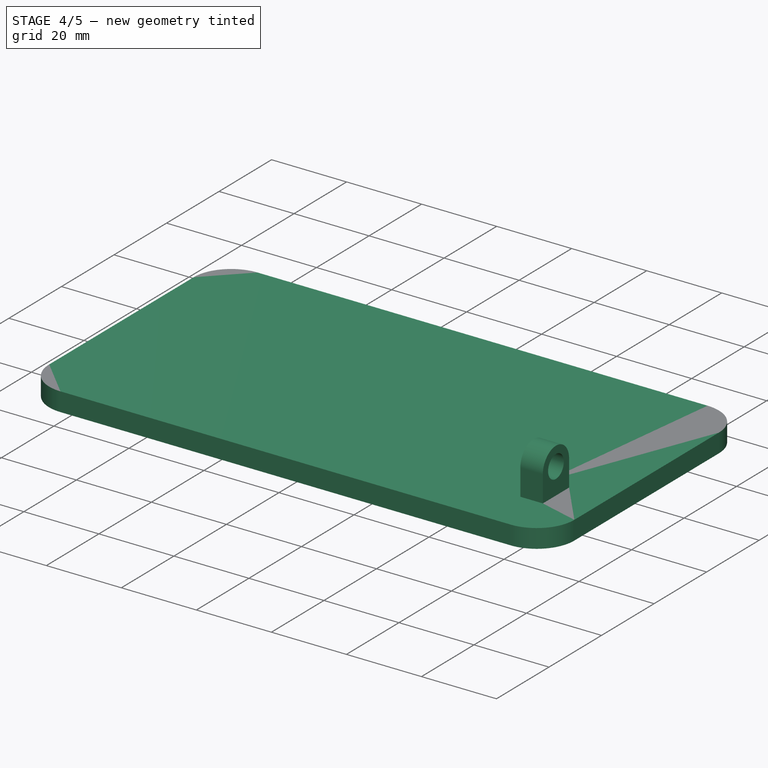
[diagram: stage 4 of 5 — iso view after this stage's code; geometry added in this stage tinted green]
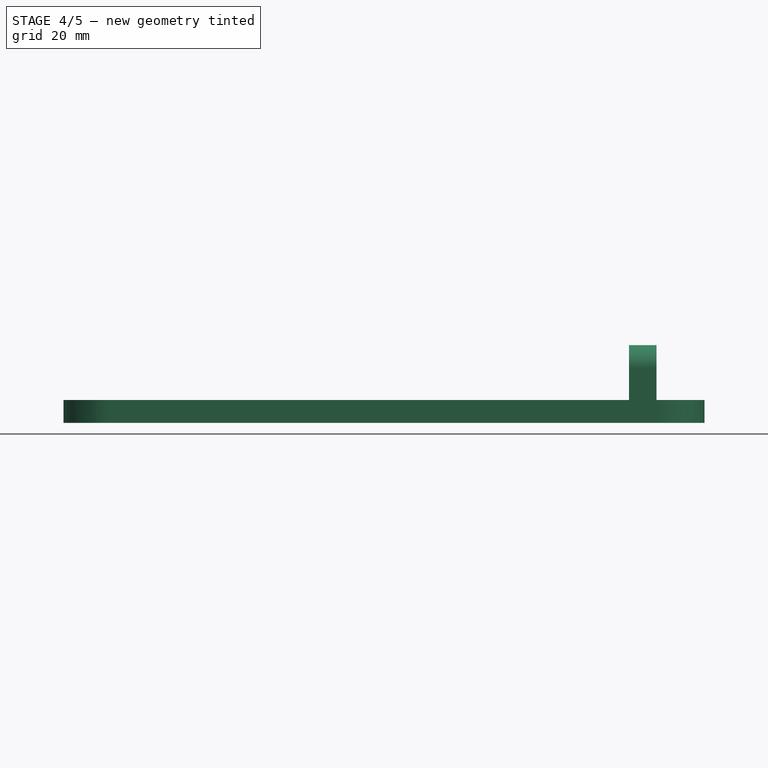
[diagram: stage 4 of 5 — front view after this stage's code; geometry added in this stage tinted green]
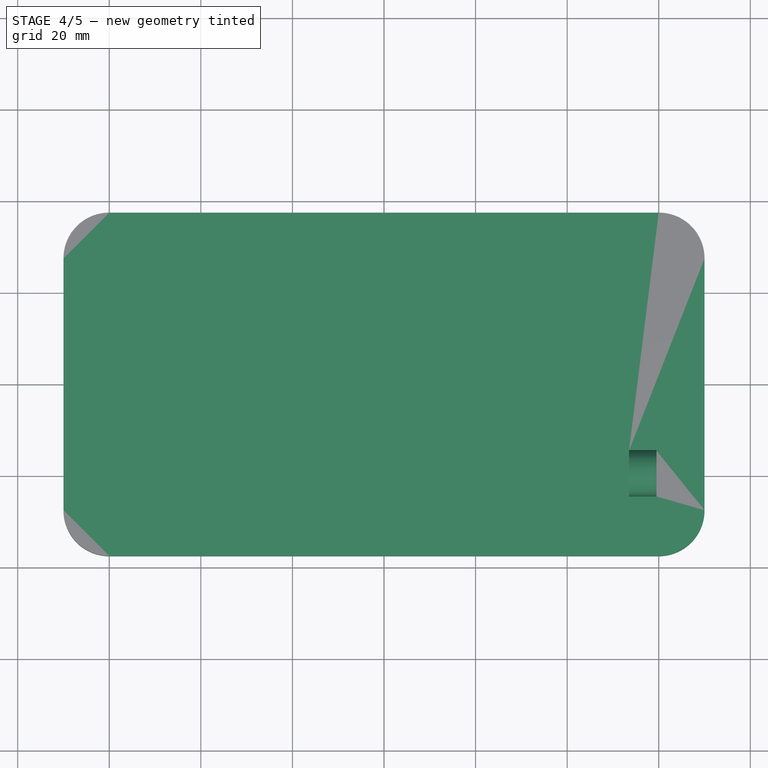
[diagram: stage 4 of 5 — top view after this stage's code; geometry added in this stage tinted green]
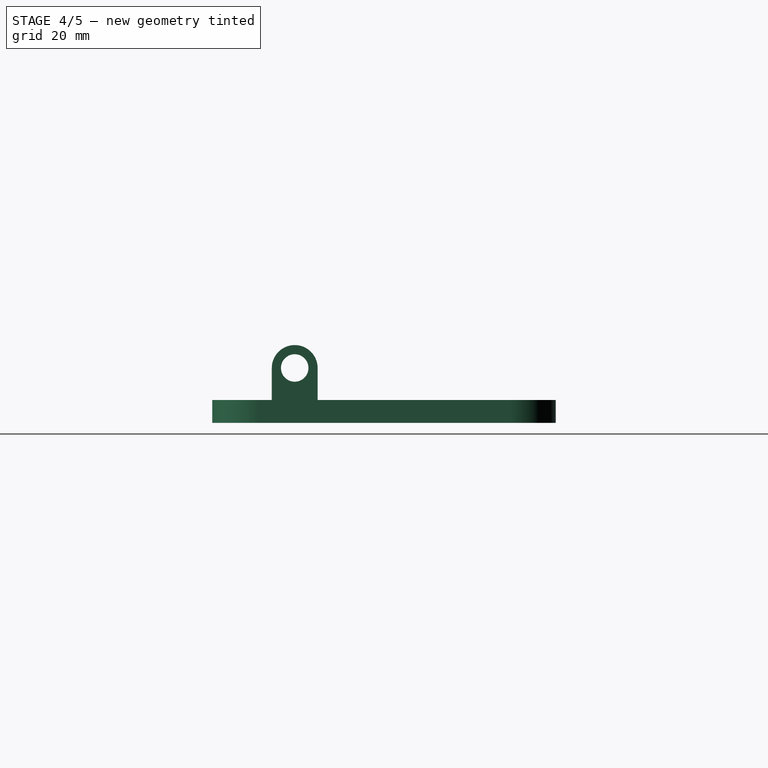
[diagram: stage 4 of 5 — right view after this stage's code; geometry added in this stage tinted green]
FEATURE [PartDesign::SubShapeBinder] Binder
  BindCopyOnChange = 0
  BindMode = 0
  ClaimChildren = false
  Context = -> Body [Binder.]
  Fuse = false
  MakeFace = true
  OffsetFill = false
  OffsetIntersection = false
  OffsetJoinType = 0
  OffsetOpenResult = false
  PartialLoad = false
  Refine = true
  Relative = true
  Support = -> [Body001[Mirrored004.Face3]]
  _Version = 2
FEATURE [PartDesign::Plane] DatumPlane
  AttachmentOffset = pos=(0,0,-7.5) rot=(0,0,1;0rad)
  AttachmentSupport = -> [Binder]
  Length = 87.2474
  MapMode = 7
  Placement = pos=(59.5,14.5,1.49e-14) rot=(0.57735,0.57735,0.57735;2.0944rad)
  ResizeMode = 0
  Width = 62.2474
FEATURE [PartDesign::Mirrored] Mirrored
  MirrorPlane = -> YZ_Plane
  Refine = true
  Suppressed = false
  TransformMode = 0
FEATURE [PartDesign::Mirrored] Mirrored001
  MirrorPlane = -> XZ_Plane
  Refine = true
  Suppressed = false
  TransformMode = 0
FEATURE [Sketcher::SketchObject] Sketch
  ArcFitTolerance = 1e-06
  AttachmentSupport = -> [XY_Plane]
  ExternalGeometry = -> [Binder]
  FullyConstrained = true
  MakeInternals = false
  MapMode = 5
  expr: Constraints[28] = Spreadsheet.wall_thikness
  expr: Constraints[29] = Spreadsheet.wall_thikness
  expr: Constraints[35] = Spreadsheet.width
  sketch-geometry (36):
    g0: LineSegment StartX=-70 StartY=-27.5 StartZ=0 EndX=-70 EndY=27.5 EndZ=0
    g1: LineSegment [constr] StartX=-60 StartY=34.5 StartZ=0 EndX=60 EndY=34.5 EndZ=0
    g2: LineSegment [constr] StartX=-60 StartY=-34.5 StartZ=0 EndX=60 EndY=-34.5 EndZ=0
    g3: LineSegment StartX=-60 StartY=-37.5 StartZ=0 EndX=60 EndY=-37.5 EndZ=0
    g4: LineSegment [constr] StartX=-67 StartY=27.5 StartZ=0 EndX=-67 EndY=-27.5 EndZ=0
    g5: LineSegment [constr] StartX=67 StartY=27.5 StartZ=0 EndX=67 EndY=-27.5 EndZ=0
    g6: LineSegment StartX=70 StartY=27.5 StartZ=0 EndX=70 EndY=-27.5 EndZ=0
    g7: LineSegment StartX=-60 StartY=37.5 StartZ=0 EndX=60 EndY=37.5 EndZ=0
    g8: ArcOfCircle CenterX=-60 CenterY=-27.5 CenterZ=0 NormalX=0 NormalY=0 NormalZ=1 AngleXU=0 Radius=10 StartAngle=3.1416 EndAngle=4.71239
    g9: ArcOfCircle [constr] CenterX=-60 CenterY=-27.5 CenterZ=0 NormalX=0 NormalY=0 NormalZ=1 AngleXU=0 Radius=7 StartAngle=3.1416 EndAngle=4.71239
    g10: ArcOfCircle CenterX=60 CenterY=-27.5 CenterZ=0 NormalX=0 NormalY=0 NormalZ=1 AngleXU=0 Radius=10 StartAngle=4.71239 EndAngle=6.28319
    g11: ArcOfCircle [constr] CenterX=60 CenterY=-27.5 CenterZ=0 NormalX=0 NormalY=0 NormalZ=1 AngleXU=0 Radius=7 StartAngle=4.71239 EndAngle=6.28319
    g12: ArcOfCircle [constr] CenterX=60 CenterY=27.5 CenterZ=0 NormalX=0 NormalY=0 NormalZ=1 AngleXU=0 Radius=7 StartAngle=2e-16 EndAngle=1.5708
    g13: ArcOfCircle CenterX=60 CenterY=27.5 CenterZ=0 NormalX=0 NormalY=0 NormalZ=1 AngleXU=0 Radius=10 StartAngle=0 EndAngle=1.5708
    g14: ArcOfCircle CenterX=-60 CenterY=27.5 CenterZ=0 NormalX=0 NormalY=0 NormalZ=1 AngleXU=0 Radius=10 StartAngle=1.5708 EndAngle=3.14159
    g15: ArcOfCircle [constr] CenterX=-60 CenterY=27.5 CenterZ=0 NormalX=0 NormalY=0 NormalZ=1 AngleXU=0 Radius=7 StartAngle=1.5708 EndAngle=3.14159
    g16: LineSegment [constr] StartX=-60 StartY=-37.5 StartZ=0 EndX=-60 EndY=-34.5 EndZ=0
    g17: LineSegment [constr] StartX=-60 StartY=34.5 StartZ=0 EndX=-60 EndY=37.5 EndZ=0
    g18: LineSegment [constr] StartX=60 StartY=34.5 StartZ=0 EndX=60 EndY=37.5 EndZ=0
    g19: LineSegment [constr] StartX=67 StartY=27.5 StartZ=0 EndX=70 EndY=27.5 EndZ=0
    g20: LineSegment [constr] StartX=60 StartY=-34.5 StartZ=0 EndX=60 EndY=-37.5 EndZ=0
    g21: Circle [constr] CenterX=-17.5 CenterY=-15 CenterZ=0 NormalX=0 NormalY=0 NormalZ=1 AngleXU=0 Radius=16.5
    g22: Circle [constr] CenterX=-17.5 CenterY=-15 CenterZ=0 NormalX=0 NormalY=0 NormalZ=1 AngleXU=0 Radius=13.75
    g23: Circle [constr] CenterX=17.5 CenterY=-15 CenterZ=0 NormalX=0 NormalY=0 NormalZ=1 AngleXU=0 Radius=13.75
    g24: Circle [constr] CenterX=17.5 CenterY=-15 CenterZ=0 NormalX=0 NormalY=0 NormalZ=1 AngleXU=0 Radius=16.5
    g25: LineSegment [constr] StartX=-17.5 StartY=-15 StartZ=0 EndX=17.5 EndY=-15 EndZ=0
    g26: Circle [constr] CenterX=-35 CenterY=15 CenterZ=0 NormalX=0 NormalY=0 NormalZ=1 AngleXU=0 Radius=17
    g27: Circle [constr] CenterX=-35 CenterY=15 CenterZ=0 NormalX=0 NormalY=0 NormalZ=1 AngleXU=0 Radius=13.75
    g28: Circle [constr] CenterX=0 CenterY=15 CenterZ=0 NormalX=0 NormalY=0 NormalZ=1 AngleXU=0 Radius=13.75
    g29: Circle [constr] CenterX=0 CenterY=15 CenterZ=0 NormalX=0 NormalY=0 NormalZ=1 AngleXU=0 Radius=17
    g30: Circle [constr] CenterX=35 CenterY=15 CenterZ=0 NormalX=0 NormalY=0 NormalZ=1 AngleXU=0 Radius=13.75
    g31: Circle [constr] CenterX=35 CenterY=15 CenterZ=0 NormalX=0 NormalY=0 NormalZ=1 AngleXU=0 Radius=17
    g32: LineSegment [constr] StartX=-35 StartY=15 StartZ=0 EndX=0 EndY=15 EndZ=0
    g33: LineSegment [constr] StartX=0 StartY=15 StartZ=0 EndX=35 EndY=15 EndZ=0
    g34: GeomPoint [constr] X=0 Y=-15 Z=0
    g35: LineSegment [constr] StartX=0 StartY=-15 StartZ=0 EndX=0 EndY=15 EndZ=0
  constraints (86):
    c: Coincident(g1,g-6)
    c: Coincident(g2,g-32)
    c: Coincident(g2,g-32)
    c: Coincident(g7,g-30)
    c: Coincident(g7,g-30)
    c: Coincident(g8,g-26)
    c: Coincident(g8,g3)
    c: Coincident(g8,g0)
    c: Coincident(g9,g8)
    c: Coincident(g9,g2)
    c: Coincident(g9,g4)
    c: Coincident(g10,g-34)
    c: Coincident(g10,g3)
    c: Coincident(g10,g6)
    c: Coincident(g11,g10)
    c: Coincident(g11,g2)
    c: Coincident(g11,g5)
    c: Coincident(g12,g-12)
    c: Coincident(g12,g1)
    c: Coincident(g13,g12)
    c: Coincident(g13,g6)
    c: Coincident(g13,g7)
    c: Coincident(g14,g-29)
    c: Coincident(g14,g7)
    c: Coincident(g14,g0)
    c: Coincident(g15,g14)
    c: Coincident(g15,g1)
    c: Coincident(g15,g4)
    c: Distance(g3,g2) = 3
    c: Distance(g0,g4) = 3
    c: Horizontal(g3)
    c: Vertical(g4)
    c: Vertical(g0)
    c: Vertical(g5)
    c: Vertical(g6)
    c: Distance(g6,g0) = 140
    c: Coincident(g16,g3)
    c: Coincident(g16,g2)
    c: Vertical(g16)
    c: Coincident(g17,g1)
    c: Coincident(g17,g7)
    c: Coincident(g18,g1)
    c: Coincident(g18,g7)
    c: Coincident(g19,g6)
    c: Horizontal(g19)
    c: Coincident(g20,g2)
    c: Coincident(g20,g3)
    c: Vertical(g20)
    c: Vertical(g18)
    c: Coincident(g22,g21)
    c: Diameter(g21) = 33
    c: Diameter(g22) = 27.5
    c: Coincident(g23,g24)
    c: Diameter(g24) = 33
    c: Diameter(g23) = 27.5
    c: Coincident(g25,g21)
    c: Coincident(g25,g23)
    c: Horizontal(g25)
    c: Coincident(g27,g26)
    c: Diameter(g26) = 34
    c: Diameter(g27) = 27.5
    c: Coincident(g28,g29)
    c: Coincident(g30,g31)
    c: Equal(g26,g29)
    c: Equal(g26,g31)
    c: Equal(g27,g28)
    c: Equal(g27,g30)
    c: Coincident(g32,g26)
    c: Coincident(g32,g28)
    c: Horizontal(g32)
    c: Coincident(g33,g28)
    c: Coincident(g33,g30)
    c: Horizontal(g33)
    c: Equal(g33,g32)
    c: Equal(g25,g33)
    c: Symmetric(g25,g25,g34)
    c: Coincident(g35,g34)
    c: Coincident(g35,g28)
    c: Vertical(g35)
    c: PointOnObject(g28,g-2)
    c: DistanceY(g34,g28) = 30
    c: DistanceX(g21,g23) = 35
    c: DistanceY(g34,g-1) = 15
    c: Coincident(g5,g-10)
    c: Coincident(g19,g5)
    c: Coincident(g12,g5)
FEATURE [PartDesign::Pad] Pad
  Direction = (0,0,1)
  Length = 5
  Length2 = 10
  Profile = -> Sketch [Edge1,Edge2,Edge3,Edge4,Edge5,Edge6,Edge7,Edge8]
  ReferenceAxis = -> Sketch [N_Axis]
  Refine = true
  Reversed = true
  Suppressed = false
  Type = 0
FEATURE [Sketcher::SketchObject] Sketch001
  ArcFitTolerance = 1e-06
  AttachmentSupport = -> [DatumPlane]
  ExternalGeometry = -> [Binder]
  FullyConstrained = true
  MakeInternals = false
  MapMode = 5
  Placement = pos=(59.5,14.5,1.49e-14) rot=(0.57735,0.57735,0.57735;2.0944rad)
  sketch-geometry (5):
    g0: LineSegment StartX=-39 StartY=-1.8e-15 StartZ=0 EndX=-29 EndY=-1.8e-15 EndZ=0
    g1: LineSegment StartX=-29 StartY=-1.8e-15 StartZ=0 EndX=-29 EndY=6.99998 EndZ=0
    g2: LineSegment StartX=-39 StartY=7 StartZ=0 EndX=-39 EndY=-1.8e-15 EndZ=0
    g3: ArcOfCircle CenterX=-34 CenterY=7 CenterZ=0 NormalX=0 NormalY=0 NormalZ=1 AngleXU=0 Radius=5 StartAngle=6.28318 EndAngle=9.42478
    g4: Circle CenterX=-34 CenterY=7 CenterZ=0 NormalX=0 NormalY=0 NormalZ=1 AngleXU=0 Radius=3
  constraints (14):
    c: Coincident(g0,g1)
    c: Coincident(g2,g0)
    c: Horizontal(g0)
    c: Vertical(g1)
    c: Vertical(g2)
    c: Coincident(g0,g-4)
    c: DistanceX(g2,g1) = 10
    c: Coincident(g3,g2)
    c: Coincident(g3,g1)
    c: Radius(g3) = 5
    c: Coincident(g4,g3)
    c: Diameter(g4) = 6
    c: Distance(g3,g0) = 7
    c: DistanceY(g2,g2) = 7
FEATURE [PartDesign::Pad] Pad001
  BaseFeature = -> Pad
  Direction = (1,0,0)
  Length = 6
  Length2 = 10
  Profile = -> Sketch001
  ReferenceAxis = -> Sketch001 [N_Axis]
  Refine = true
  Reversed = true
  Suppressed = false
  Type = 0
FEATURE [Sketcher::SketchObject] Sketch007
  ArcFitTolerance = 1e-06
  AttachmentSupport = -> [Pocket003]
  FullyConstrained = false
  MakeInternals = false
  MapMode = 5
  Placement = pos=(67,0,0) rot=(0.57735,-0.57735,-0.57735;2.0944rad)
  sketch-geometry (4):
    g0: ArcOfCircle CenterX=8.4e-15 CenterY=40 CenterZ=0 NormalX=0 NormalY=0 NormalZ=1 AngleXU=0 Radius=10.5 StartAngle=0 EndAngle=3.14159
    g1: ArcOfCircle CenterX=8.4e-15 CenterY=30 CenterZ=0 NormalX=0 NormalY=0 NormalZ=1 AngleXU=0 Radius=10.5 StartAngle=3.14159 EndAngle=6.28318
    g2: LineSegment StartX=-10.5 StartY=40 StartZ=0 EndX=-10.5 EndY=30 EndZ=0
    g3: LineSegment StartX=10.5 StartY=40 StartZ=0 EndX=10.5 EndY=30 EndZ=0
  constraints (4):
    c: Coincident(g3,g0)
    c: Coincident(g3,g1)
    c: Tangent(g2,g0) = -1.5708
    c: Tangent(g2,g1) = -1.5708
FEATURE [PartDesign::Pocket] Pocket005
  BaseFeature = -> Pocket004
  Direction = (1,0,0)
  Length = 1
  Length2 = 5
  Profile = -> Sketch007
  ReferenceAxis = -> Sketch007 [N_Axis]
  Refine = true
  Suppressed = false
  Type = 0
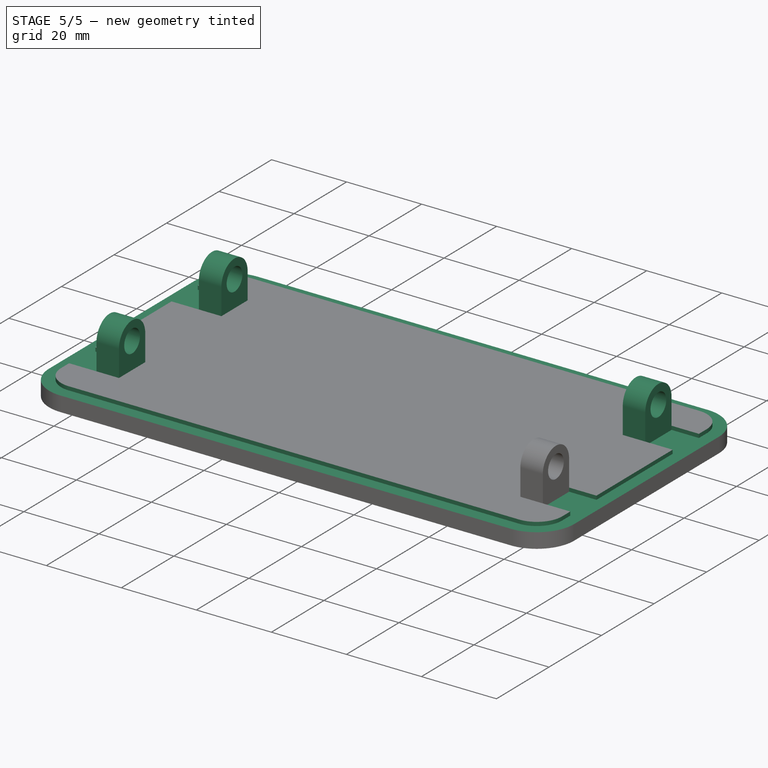
[diagram: stage 5 of 5 — iso view after this stage's code; geometry added in this stage tinted green]
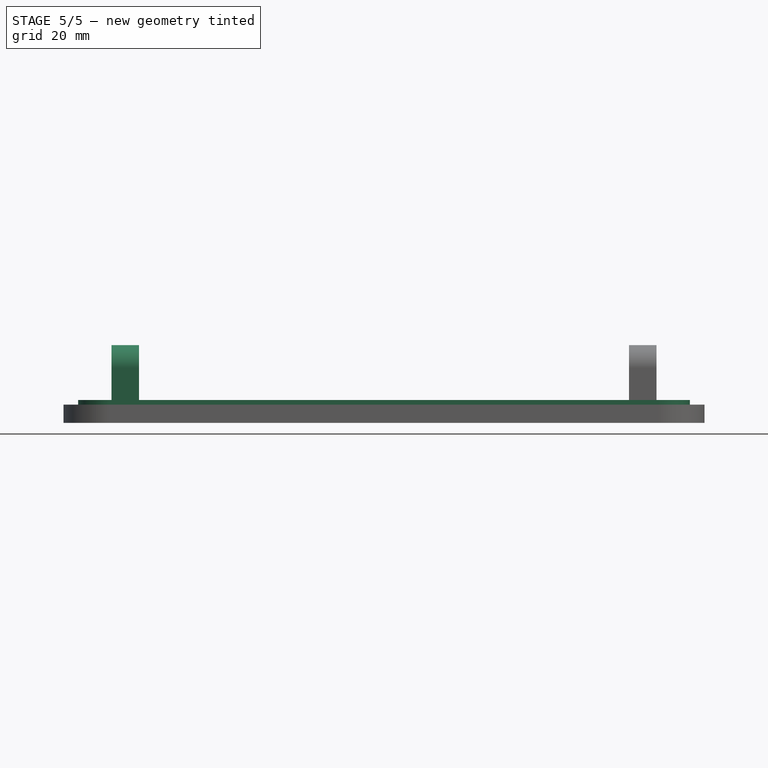
[diagram: stage 5 of 5 — front view after this stage's code; geometry added in this stage tinted green]
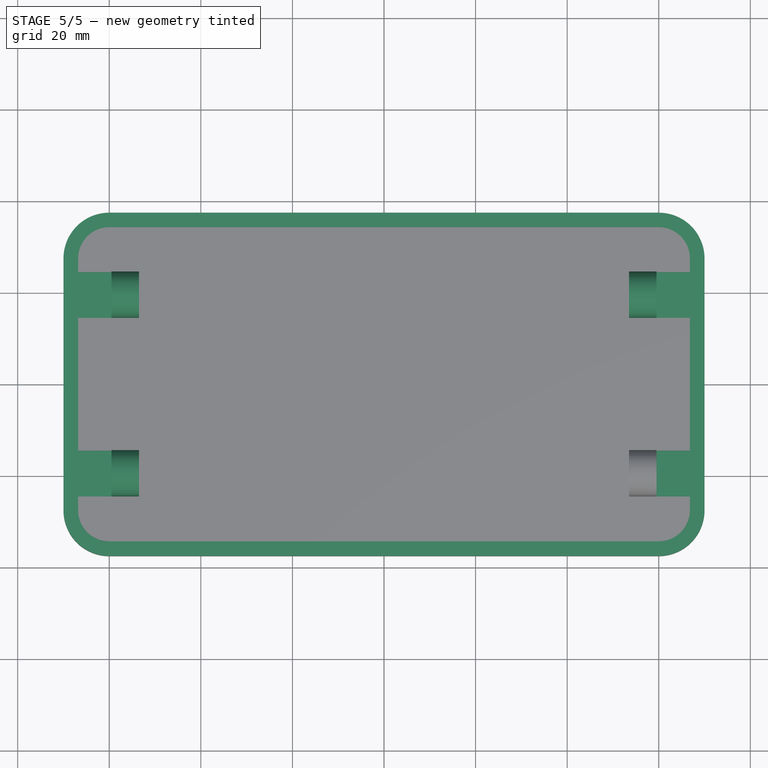
[diagram: stage 5 of 5 — top view after this stage's code; geometry added in this stage tinted green]
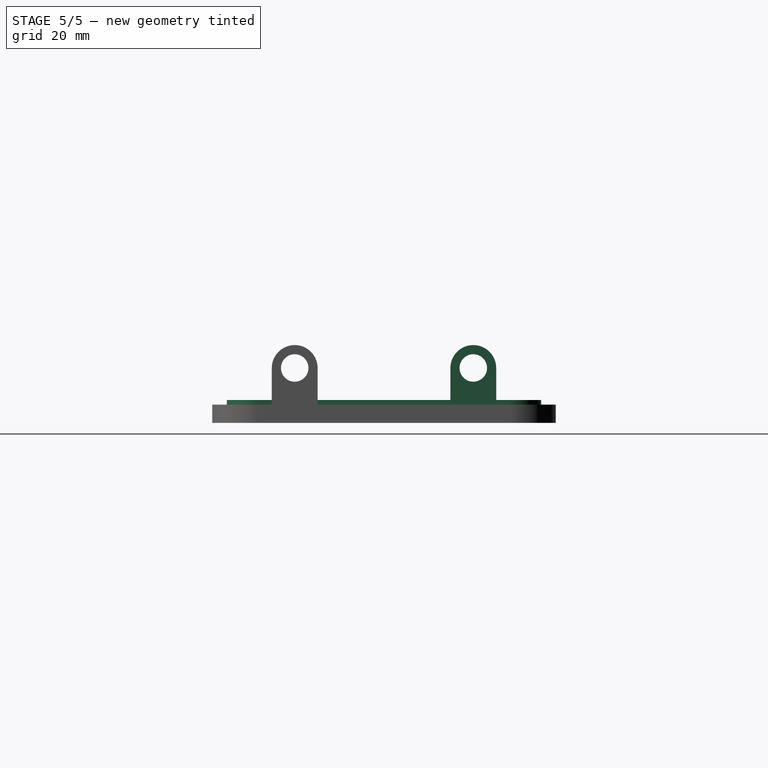
[diagram: stage 5 of 5 — right view after this stage's code; geometry added in this stage tinted green]
FEATURE [PartDesign::MultiTransform] MultiTransform
  BaseFeature = -> Pad001
  Originals = -> [Pad001]
  Refine = true
  Suppressed = false
  TransformMode = 0
  Transformations = -> [Mirrored,Mirrored001]
FEATURE [PartDesign::Body] Body001
  AllowCompound = false
  Group = -> [Sketch002,Pad002,Sketch003,Pocket001,Mirrored002,Sketch004,Pad003,Pocket002,Mirrored003,Mirrored004,Binder001,Sketch005,Pocket003,Sketch006,Sketch007,Pocket004,Pocket005]
  Origin = -> Origin001
  Tip = -> Pocket005
FEATURE [Spreadsheet::Sheet] Spreadsheet
  cells = A1='Wall_thickness; B1(wall_thikness)=3; A2='height; B2(height)=75; A3='width; B3(width)=140; A4='external_radius; B4(external_radius)=10; A5='internal_radius; B5(internal_radius)=6
FEATURE [Sketcher::SketchObject] Sketch009
  ArcFitTolerance = 1e-06
  ExternalGeometry = -> [Sketch]
  FullyConstrained = true
  MakeInternals = false
  MapMode = 5
  sketch-geometry (16):
    g0: LineSegment StartX=-60 StartY=37.5 StartZ=0 EndX=60 EndY=37.5 EndZ=0
    g1: LineSegment StartX=60 StartY=-37.5 StartZ=0 EndX=-60 EndY=-37.5 EndZ=0
    g2: ArcOfCircle CenterX=-60 CenterY=27.5 CenterZ=0 NormalX=0 NormalY=0 NormalZ=1 AngleXU=0 Radius=10 StartAngle=1.5708 EndAngle=3.14159
    g3: ArcOfCircle CenterX=60 CenterY=27.5 CenterZ=0 NormalX=0 NormalY=0 NormalZ=1 AngleXU=0 Radius=10 StartAngle=1e-16 EndAngle=1.5708
    g4: ArcOfCircle CenterX=60 CenterY=-27.5 CenterZ=0 NormalX=0 NormalY=0 NormalZ=1 AngleXU=0 Radius=10 StartAngle=4.71239 EndAngle=6.28319
    g5: ArcOfCircle CenterX=-60 CenterY=-27.5 CenterZ=0 NormalX=0 NormalY=0 NormalZ=1 AngleXU=0 Radius=10 StartAngle=3.1416 EndAngle=4.71239
    g6: LineSegment StartX=-70 StartY=-27.5 StartZ=0 EndX=-70 EndY=27.5 EndZ=0
    g7: LineSegment StartX=70 StartY=27.5 StartZ=0 EndX=70 EndY=-27.5 EndZ=0
    g8: LineSegment StartX=-66.8 StartY=27.5 StartZ=0 EndX=-66.8 EndY=-27.5 EndZ=0
    g9: LineSegment StartX=-60 StartY=34.3 StartZ=0 EndX=60 EndY=34.3 EndZ=0
    g10: LineSegment StartX=66.8 StartY=27.5 StartZ=0 EndX=66.8 EndY=-27.5 EndZ=0
    g11: LineSegment StartX=60 StartY=-34.3 StartZ=0 EndX=-60 EndY=-34.3 EndZ=0
    g12: ArcOfCircle CenterX=60 CenterY=-27.5 CenterZ=0 NormalX=0 NormalY=0 NormalZ=1 AngleXU=0 Radius=6.8 StartAngle=4.71239 EndAngle=6.28319
    g13: ArcOfCircle CenterX=60 CenterY=27.5 CenterZ=0 NormalX=0 NormalY=0 NormalZ=1 AngleXU=0 Radius=6.8 StartAngle=2e-16 EndAngle=1.5708
    g14: ArcOfCircle CenterX=-60 CenterY=27.5 CenterZ=0 NormalX=0 NormalY=0 NormalZ=1 AngleXU=0 Radius=6.8 StartAngle=1.57079 EndAngle=3.14159
    g15: ArcOfCircle CenterX=-60 CenterY=-27.5 CenterZ=0 NormalX=0 NormalY=0 NormalZ=1 AngleXU=0 Radius=6.8 StartAngle=3.1416 EndAngle=4.71239
  constraints (41):
    c: Coincident(g6,g5)
    c: Coincident(g6,g2)
    c: Coincident(g4,g-9)
    c: Coincident(g3,g-10)
    c: Coincident(g3,g-10)
    c: Horizontal(g0)
    c: Tangent(g0,g3) = 1.5708
    c: Coincident(g0,g2)
    c: Coincident(g2,g-5)
    c: Coincident(g2,g-4)
    c: Coincident(g5,g-6)
    c: Coincident(g5,g-6)
    c: Tangent(g1,g5) = 1.5708
    c: Tangent(g1,g4) = 1.5708
    c: Coincident(g4,g-8)
    c: Coincident(g7,g3)
    c: Coincident(g7,g4)
    c: Vertical(g8)
    c: Horizontal(g8,g5)
    c: Horizontal(g8,g2)
    c: Distance(g8,g6) = 3.2
    c: Horizontal(g9)
    c: Vertical(g10)
    c: Horizontal(g11)
    c: Vertical(g11,g1)
    c: Vertical(g11,g1)
    c: Horizontal(g10,g3)
    c: Horizontal(g10,g4)
    c: Vertical(g9,g0)
    c: Coincident(g12,g10)
    c: Coincident(g12,g11)
    c: Coincident(g12,g4)
    c: Coincident(g13,g9)
    c: Coincident(g13,g10)
    c: Coincident(g13,g3)
    c: Coincident(g14,g9)
    c: Coincident(g14,g8)
    c: Coincident(g14,g2)
    c: Coincident(g15,g11)
    c: Coincident(g15,g8)
    c: Coincident(g15,g5)
FEATURE [PartDesign::Pocket] Pocket
  BaseFeature = -> MultiTransform
  Direction = (0,0,-1)
  Length = 1
  Length2 = 5
  Profile = -> Sketch009
  ReferenceAxis = -> Sketch009 [N_Axis]
  Refine = true
  Suppressed = false
  Type = 0
FEATURE [Sketcher::SketchObject] Sketch010
  ArcFitTolerance = 1e-06
  AttachmentSupport = -> [Pocket]
  ExternalGeometry = -> [Pocket]
  FullyConstrained = true
  MakeInternals = false
  MapMode = 5
  sketch-geometry (16):
    g0: LineSegment StartX=-59.5 StartY=24.5 StartZ=0 EndX=-66.8 EndY=24.5 EndZ=0
    g1: LineSegment StartX=-66.8 StartY=24.5 StartZ=0 EndX=-66.8 EndY=14.5 EndZ=0
    g2: LineSegment StartX=-66.8 StartY=14.5 StartZ=0 EndX=-59.5 EndY=14.5 EndZ=0
    g3: LineSegment StartX=-59.5 StartY=14.5 StartZ=0 EndX=-59.5 EndY=24.5 EndZ=0
    g4: LineSegment StartX=-59.5 StartY=-14.5 StartZ=0 EndX=-66.8 EndY=-14.5 EndZ=0
    g5: LineSegment StartX=-66.8 StartY=-14.5 StartZ=0 EndX=-66.8 EndY=-24.5 EndZ=0
    g6: LineSegment StartX=-66.8 StartY=-24.5 StartZ=0 EndX=-59.5 EndY=-24.5 EndZ=0
    g7: LineSegment StartX=-59.5 StartY=-24.5 StartZ=0 EndX=-59.5 EndY=-14.5 EndZ=0
    g8: LineSegment StartX=59.5 StartY=-14.5 StartZ=0 EndX=59.5 EndY=-24.5 EndZ=0
    g9: LineSegment StartX=59.5 StartY=-24.5 StartZ=0 EndX=66.8 EndY=-24.5 EndZ=0
    g10: LineSegment StartX=66.8 StartY=-24.5 StartZ=0 EndX=66.8 EndY=-14.5 EndZ=0
    g11: LineSegment StartX=66.8 StartY=-14.5 StartZ=0 EndX=59.5 EndY=-14.5 EndZ=0
    g12: LineSegment StartX=59.5 StartY=14.5 StartZ=0 EndX=66.8 EndY=14.5 EndZ=0
    g13: LineSegment StartX=66.8 StartY=14.5 StartZ=0 EndX=66.8 EndY=24.5 EndZ=0
    g14: LineSegment StartX=66.8 StartY=24.5 StartZ=0 EndX=59.5 EndY=24.5 EndZ=0
    g15: LineSegment StartX=59.5 StartY=24.5 StartZ=0 EndX=59.5 EndY=14.5 EndZ=0
  constraints (41):
    c: Coincident(g0,g1)
    c: Coincident(g1,g2)
    c: Coincident(g2,g3)
    c: Coincident(g3,g0)
    c: Horizontal(g0)
    c: Horizontal(g2)
    c: Vertical(g1)
    c: Coincident(g0,g-6)
    c: PointOnObject(g1,g-3)
    c: Coincident(g2,g-5)
    c: Coincident(g4,g5)
    c: Coincident(g5,g6)
    c: Coincident(g6,g7)
    c: Coincident(g7,g4)
    c: Horizontal(g4)
    c: Horizontal(g6)
    c: Vertical(g5)
    c: Coincident(g4,g-8)
    c: PointOnObject(g5,g-3)
    c: Coincident(g6,g-10)
    c: Coincident(g8,g9)
    c: Coincident(g9,g10)
    c: Coincident(g10,g11)
    c: Coincident(g11,g8)
    c: Vertical(g8)
    c: Vertical(g10)
    c: Horizontal(g9)
    c: Horizontal(g11)
    c: Coincident(g8,g-12)
    c: PointOnObject(g9,g-14)
    c: PointOnObject(g8,g-13)
    c: Coincident(g12,g13)
    c: Coincident(g13,g14)
    c: Coincident(g14,g15)
    c: Coincident(g15,g12)
    c: Horizontal(g12)
    c: Horizontal(g14)
    c: Vertical(g13)
    c: Coincident(g12,g-16)
    c: PointOnObject(g13,g-14)
    c: Coincident(g14,g-17)
FEATURE [PartDesign::Pocket] Pocket006
  BaseFeature = -> Pocket
  Direction = (0,0,-1)
  Length = 1
  Length2 = 5
  Profile = -> Sketch010
  ReferenceAxis = -> Sketch010 [N_Axis]
  Refine = true
  Suppressed = false
  Type = 0
FEATURE [PartDesign::Body] Body
  AllowCompound = false
  Group = -> [Sketch,Binder,Pad,DatumPlane,Sketch001,Pad001,MultiTransform,Mirrored,Mirrored001,Sketch009,Pocket,Sketch010,Pocket006]
  Origin = -> Origin
  Tip = -> Pocket006
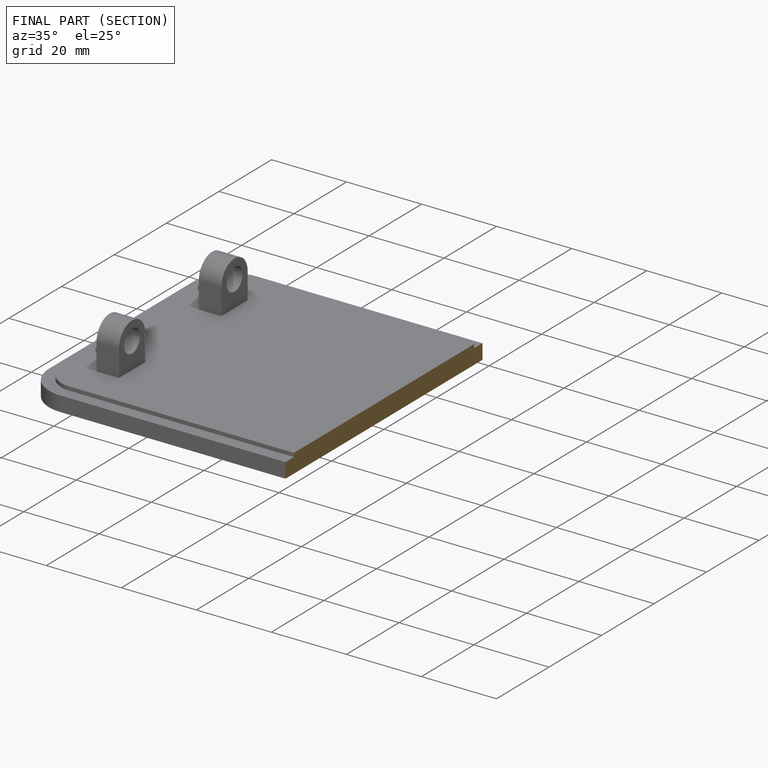
[diagram: finished part — half-section view (interior)]
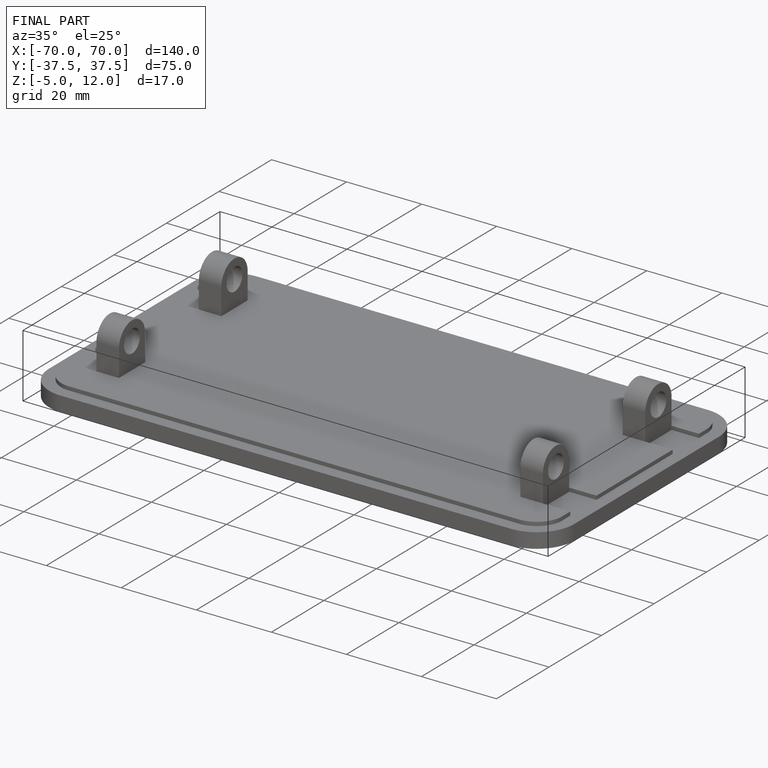
[diagram: finished part — iso view with bounding-box wireframe]
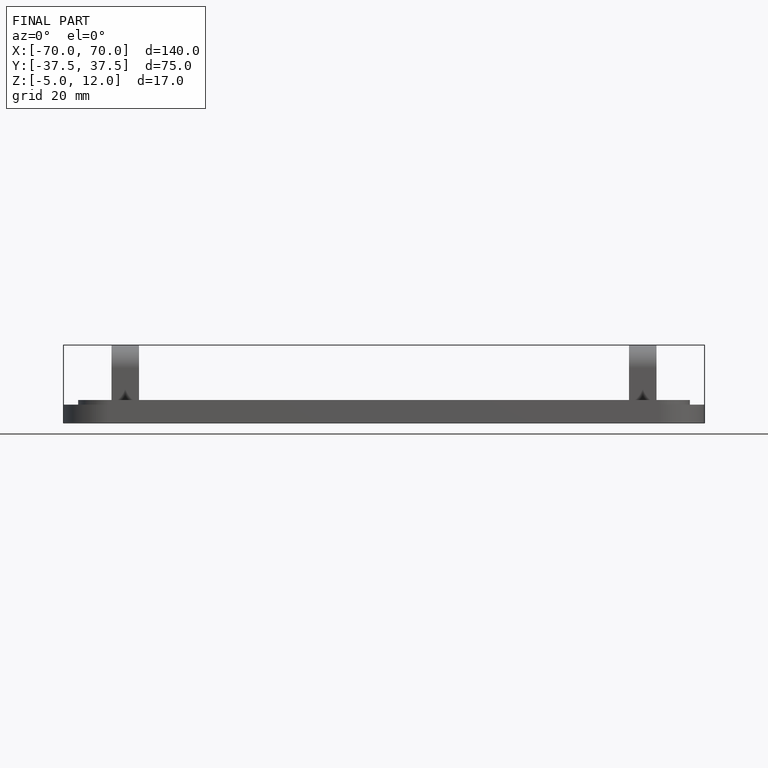
[diagram: finished part — front view with bounding-box wireframe]
